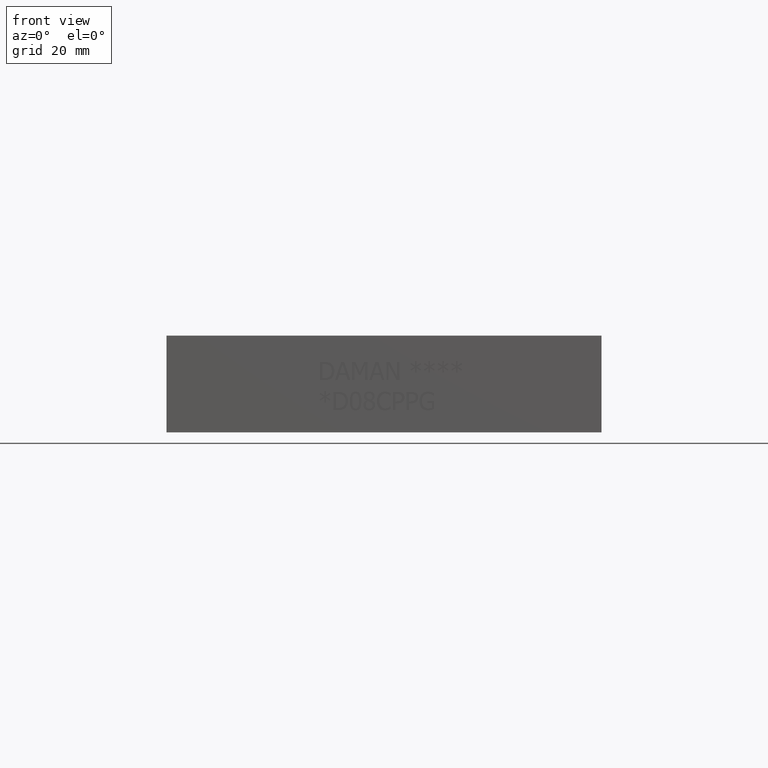
[diagram: clean part render]
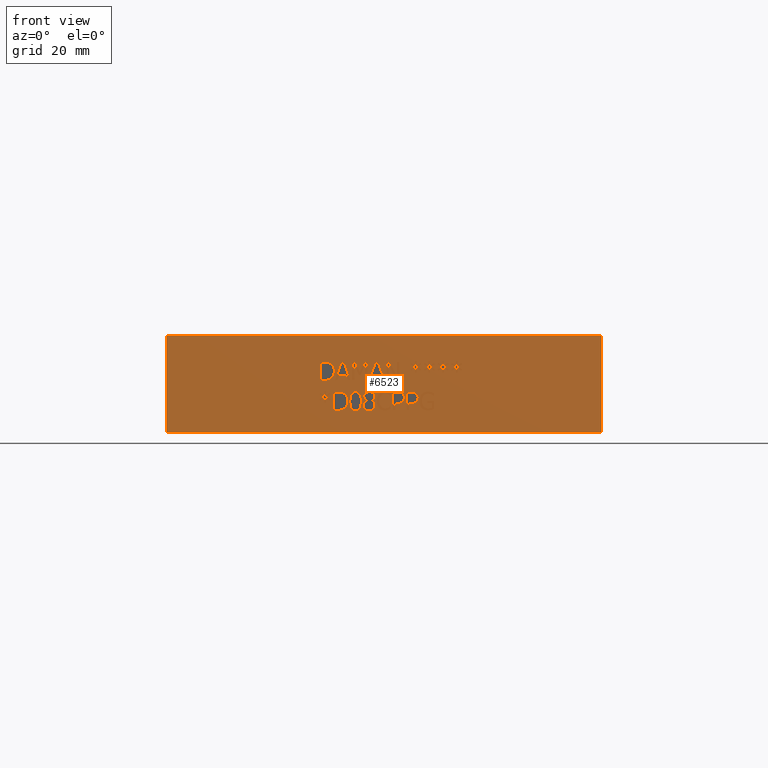
[diagram: same view with one face highlighted and labeled with its STEP entity id]
A machine part, front view. The second image highlights one B-rep face of the part: STEP entity #6523.
In plain terms, the highlighted planar face has unit normal (0, -1, 0).
Its self-contained STEP definition (entity closure, byte-faithful):
#99=FACE_BOUND('',#882,.T.);
#100=FACE_BOUND('',#883,.T.);
#101=FACE_BOUND('',#884,.T.);
#102=FACE_BOUND('',#885,.T.);
#103=FACE_BOUND('',#886,.T.);
#104=FACE_BOUND('',#887,.T.);
#105=FACE_BOUND('',#888,.T.);
#106=FACE_BOUND('',#889,.T.);
#107=FACE_BOUND('',#890,.T.);
#108=FACE_BOUND('',#891,.T.);
#109=FACE_BOUND('',#892,.T.);
#110=FACE_BOUND('',#893,.T.);
#111=FACE_BOUND('',#894,.T.);
#112=FACE_BOUND('',#895,.T.);
#113=FACE_BOUND('',#896,.T.);
#114=FACE_BOUND('',#897,.T.);
#115=FACE_BOUND('',#898,.T.);
#528=FACE_OUTER_BOUND('',#881,.T.);
#881=EDGE_LOOP('',(#5473,#5474,#5475,#5476));
#882=EDGE_LOOP('',(#5477,#5478,#5479,#5480,#5481,#5482,#5483,#5484,#5485,
#5486,#5487,#5488,#5489,#5490,#5491,#5492,#5493,#5494,#5495,#5496,#5497));
#883=EDGE_LOOP('',(#5498,#5499,#5500,#5501,#5502,#5503,#5504,#5505,#5506,
#5507));
#884=EDGE_LOOP('',(#5508,#5509,#5510,#5511,#5512,#5513,#5514,#5515));
#885=EDGE_LOOP('',(#5516,#5517,#5518,#5519,#5520,#5521,#5522,#5523,#5524,
#5525,#5526,#5527,#5528,#5529,#5530,#5531,#5532,#5533));
#886=EDGE_LOOP('',(#5534,#5535,#5536,#5537,#5538,#5539,#5540));
#887=EDGE_LOOP('',(#5541,#5542,#5543,#5544,#5545,#5546,#5547,#5548,#5549,
#5550,#5551,#5552,#5553,#5554,#5555,#5556,#5557,#5558));
#888=EDGE_LOOP('',(#5559,#5560,#5561,#5562,#5563,#5564,#5565,#5566));
#889=EDGE_LOOP('',(#5567,#5568,#5569,#5570,#5571,#5572,#5573));
#890=EDGE_LOOP('',(#5574,#5575,#5576,#5577,#5578,#5579,#5580,#5581,#5582,
#5583,#5584,#5585,#5586));
#891=EDGE_LOOP('',(#5587,#5588,#5589,#5590));
#892=EDGE_LOOP('',(#5591,#5592,#5593,#5594,#5595,#5596,#5597,#5598,#5599,
#5600,#5601,#5602,#5603,#5604,#5605,#5606,#5607,#5608));
#893=EDGE_LOOP('',(#5609,#5610,#5611,#5612,#5613,#5614,#5615,#5616,#5617,
#5618,#5619));
#894=EDGE_LOOP('',(#5620,#5621,#5622,#5623,#5624,#5625,#5626,#5627,#5628,
#5629,#5630,#5631,#5632,#5633,#5634,#5635,#5636,#5637));
#895=EDGE_LOOP('',(#5638,#5639,#5640,#5641,#5642,#5643,#5644,#5645,#5646));
#896=EDGE_LOOP('',(#5647,#5648,#5649,#5650,#5651,#5652,#5653,#5654,#5655,
#5656,#5657,#5658,#5659,#5660,#5661,#5662,#5663,#5664));
#897=EDGE_LOOP('',(#5665,#5666,#5667,#5668,#5669,#5670,#5671,#5672,#5673));
#898=EDGE_LOOP('',(#5674,#5675,#5676,#5677,#5678,#5679,#5680,#5681,#5682,
#5683,#5684,#5685,#5686,#5687,#5688,#5689,#5690,#5691,#5692,#5693));
#993=LINE('',#8373,#1676);
#995=LINE('',#8377,#1678);
#997=LINE('',#8381,#1680);
#999=LINE('',#8385,#1682);
#1001=LINE('',#8389,#1684);
#1007=LINE('',#8449,#1690);
#1009=LINE('',#8453,#1692);
#1026=LINE('',#8561,#1709);
#1029=LINE('',#8566,#1712);
#1031=LINE('',#8570,#1714);
#1033=LINE('',#8574,#1716);
#1035=LINE('',#8578,#1718);
#1037=LINE('',#8582,#1720);
#1039=LINE('',#8586,#1722);
#1041=LINE('',#8590,#1724);
#1043=LINE('',#8594,#1726);
#1045=LINE('',#8597,#1728);
#1046=LINE('',#8601,#1729);
#1050=LINE('',#8609,#1733);
#1053=LINE('',#8615,#1736);
#1056=LINE('',#8621,#1739);
#1063=LINE('',#8636,#1746);
#1066=LINE('',#8642,#1749);
#1069=LINE('',#8648,#1752);
#1072=LINE('',#8653,#1755);
#1097=LINE('',#8705,#1780);
#1100=LINE('',#8710,#1783);
#1102=LINE('',#8714,#1785);
#1104=LINE('',#8718,#1787);
#1106=LINE('',#8722,#1789);
#1108=LINE('',#8726,#1791);
#1110=LINE('',#8730,#1793);
#1112=LINE('',#8734,#1795);
#1114=LINE('',#8738,#1797);
#1116=LINE('',#8742,#1799);
#1118=LINE('',#8746,#1801);
#1120=LINE('',#8750,#1803);
#1122=LINE('',#8754,#1805);
#1124=LINE('',#8758,#1807);
#1126=LINE('',#8762,#1809);
#1128=LINE('',#8766,#1811);
#1130=LINE('',#8770,#1813);
#1132=LINE('',#8773,#1815);
#1136=LINE('',#8823,#1819);
#1151=LINE('',#8894,#1834);
#1154=LINE('',#8899,#1837);
#1177=LINE('',#9027,#1860);
#1180=LINE('',#9032,#1863);
#1182=LINE('',#9036,#1865);
#1184=LINE('',#9040,#1867);
#1186=LINE('',#9044,#1869);
#1188=LINE('',#9048,#1871);
#1190=LINE('',#9052,#1873);
#1192=LINE('',#9056,#1875);
#1194=LINE('',#9060,#1877);
#1196=LINE('',#9064,#1879);
#1198=LINE('',#9068,#1881);
#1200=LINE('',#9072,#1883);
#1202=LINE('',#9076,#1885);
#1204=LINE('',#9080,#1887);
#1206=LINE('',#9084,#1889);
#1208=LINE('',#9088,#1891);
#1210=LINE('',#9092,#1893);
#1212=LINE('',#9095,#1895);
#1213=LINE('',#9099,#1896);
#1217=LINE('',#9107,#1900);
#1220=LINE('',#9113,#1903);
#1223=LINE('',#9119,#1906);
#1230=LINE('',#9134,#1913);
#1233=LINE('',#9140,#1916);
#1236=LINE('',#9146,#1919);
#1239=LINE('',#9151,#1922);
#1257=LINE('',#9301,#1940);
#1260=LINE('',#9306,#1943);
#1269=LINE('',#9348,#1952);
#1272=LINE('',#9379,#1955);
#1276=LINE('',#9387,#1959);
#1279=LINE('',#9393,#1962);
#1282=LINE('',#9399,#1965);
#1285=LINE('',#9405,#1968);
#1288=LINE('',#9411,#1971);
#1291=LINE('',#9417,#1974);
#1294=LINE('',#9423,#1977);
#1297=LINE('',#9429,#1980);
#1300=LINE('',#9435,#1983);
#1303=LINE('',#9441,#1986);
#1306=LINE('',#9447,#1989);
#1309=LINE('',#9452,#1992);
#1323=LINE('',#9723,#2006);
#1327=LINE('',#9731,#2010);
#1330=LINE('',#9737,#2013);
#1333=LINE('',#9743,#2016);
#1336=LINE('',#9749,#2019);
#1339=LINE('',#9755,#2022);
#1342=LINE('',#9761,#2025);
#1345=LINE('',#9767,#2028);
#1348=LINE('',#9773,#2031);
#1351=LINE('',#9779,#2034);
#1354=LINE('',#9785,#2037);
#1357=LINE('',#9791,#2040);
#1360=LINE('',#9797,#2043);
#1363=LINE('',#9803,#2046);
#1366=LINE('',#9809,#2049);
#1369=LINE('',#9815,#2052);
#1372=LINE('',#9821,#2055);
#1375=LINE('',#9826,#2058);
#1391=LINE('',#10120,#2074);
#1398=LINE('',#10218,#2081);
#1402=LINE('',#10263,#2085);
#1406=LINE('',#10271,#2089);
#1409=LINE('',#10277,#2092);
#1412=LINE('',#10283,#2095);
#1415=LINE('',#10289,#2098);
#1418=LINE('',#10295,#2101);
#1421=LINE('',#10301,#2104);
#1424=LINE('',#10307,#2107);
#1427=LINE('',#10313,#2110);
#1430=LINE('',#10319,#2113);
#1433=LINE('',#10325,#2116);
#1436=LINE('',#10331,#2119);
#1439=LINE('',#10337,#2122);
#1442=LINE('',#10343,#2125);
#1445=LINE('',#10349,#2128);
#1448=LINE('',#10355,#2131);
#1451=LINE('',#10361,#2134);
#1454=LINE('',#10366,#2137);
#1469=LINE('',#10511,#2152);
#1472=LINE('',#10516,#2155);
#1474=LINE('',#10520,#2157);
#1483=LINE('',#10562,#2166);
#1485=LINE('',#10566,#2168);
#1488=LINE('',#10597,#2171);
#1492=LINE('',#10605,#2175);
#1495=LINE('',#10611,#2178);
#1498=LINE('',#10617,#2181);
#1501=LINE('',#10623,#2184);
#1504=LINE('',#10629,#2187);
#1507=LINE('',#10635,#2190);
#1510=LINE('',#10641,#2193);
#1513=LINE('',#10647,#2196);
#1516=LINE('',#10653,#2199);
#1519=LINE('',#10659,#2202);
#1522=LINE('',#10665,#2205);
#1525=LINE('',#10671,#2208);
#1528=LINE('',#10677,#2211);
#1531=LINE('',#10683,#2214);
#1534=LINE('',#10689,#2217);
#1537=LINE('',#10695,#2220);
#1540=LINE('',#10700,#2223);
#1555=LINE('',#10845,#2238);
#1558=LINE('',#10850,#2241);
#1560=LINE('',#10854,#2243);
#1569=LINE('',#10896,#2252);
#1571=LINE('',#10900,#2254);
#1581=LINE('',#11065,#2264);
#1584=LINE('',#11071,#2267);
#1591=LINE('',#11165,#2274);
#1594=LINE('',#11171,#2277);
#1602=LINE('',#11308,#2285);
#1603=LINE('',#11310,#2286);
#1604=LINE('',#11312,#2287);
#1605=LINE('',#11313,#2288);
#1676=VECTOR('',#6919,0.393700787401575);
#1678=VECTOR('',#6923,0.393700787401575);
#1680=VECTOR('',#6927,0.393700787401575);
#1682=VECTOR('',#6931,0.393700787401575);
#1684=VECTOR('',#6935,0.393700787401575);
#1690=VECTOR('',#6943,0.393700787401575);
#1692=VECTOR('',#6947,0.393700787401575);
#1709=VECTOR('',#6968,0.393700787401575);
#1712=VECTOR('',#6973,0.393700787401575);
#1714=VECTOR('',#6977,0.393700787401575);
#1716=VECTOR('',#6981,0.393700787401575);
#1718=VECTOR('',#6985,0.393700787401575);
#1720=VECTOR('',#6989,0.393700787401575);
#1722=VECTOR('',#6993,0.393700787401575);
#1724=VECTOR('',#6997,0.393700787401575);
#1726=VECTOR('',#7001,0.393700787401575);
#1728=VECTOR('',#7005,0.393700787401575);
#1729=VECTOR('',#7008,0.393700787401575);
#1733=VECTOR('',#7014,0.393700787401575);
#1736=VECTOR('',#7019,0.393700787401575);
#1739=VECTOR('',#7024,0.393700787401575);
#1746=VECTOR('',#7035,0.393700787401575);
#1749=VECTOR('',#7040,0.393700787401575);
#1752=VECTOR('',#7045,0.393700787401575);
#1755=VECTOR('',#7050,0.393700787401575);
#1780=VECTOR('',#7085,0.393700787401575);
#1783=VECTOR('',#7090,0.393700787401575);
#1785=VECTOR('',#7094,0.393700787401575);
#1787=VECTOR('',#7098,0.393700787401575);
#1789=VECTOR('',#7102,0.393700787401575);
#1791=VECTOR('',#7106,0.393700787401575);
#1793=VECTOR('',#7110,0.393700787401575);
#1795=VECTOR('',#7114,0.393700787401575);
#1797=VECTOR('',#7118,0.393700787401575);
#1799=VECTOR('',#7122,0.393700787401575);
#1801=VECTOR('',#7126,0.393700787401575);
#1803=VECTOR('',#7130,0.393700787401575);
#1805=VECTOR('',#7134,0.393700787401575);
#1807=VECTOR('',#7138,0.393700787401575);
#1809=VECTOR('',#7142,0.393700787401575);
#1811=VECTOR('',#7146,0.393700787401575);
#1813=VECTOR('',#7150,0.393700787401575);
#1815=VECTOR('',#7154,0.393700787401575);
#1819=VECTOR('',#7160,0.393700787401575);
#1834=VECTOR('',#7183,0.393700787401575);
#1837=VECTOR('',#7188,0.393700787401575);
#1860=VECTOR('',#7217,0.393700787401575);
#1863=VECTOR('',#7222,0.393700787401575);
#1865=VECTOR('',#7226,0.393700787401575);
#1867=VECTOR('',#7230,0.393700787401575);
#1869=VECTOR('',#7234,0.393700787401575);
#1871=VECTOR('',#7238,0.393700787401575);
#1873=VECTOR('',#7242,0.393700787401575);
#1875=VECTOR('',#7246,0.393700787401575);
#1877=VECTOR('',#7250,0.393700787401575);
#1879=VECTOR('',#7254,0.393700787401575);
#1881=VECTOR('',#7258,0.393700787401575);
#1883=VECTOR('',#7262,0.393700787401575);
#1885=VECTOR('',#7266,0.393700787401575);
#1887=VECTOR('',#7270,0.393700787401575);
#1889=VECTOR('',#7274,0.393700787401575);
#1891=VECTOR('',#7278,0.393700787401575);
#1893=VECTOR('',#7282,0.393700787401575);
#1895=VECTOR('',#7286,0.393700787401575);
#1896=VECTOR('',#7289,0.393700787401575);
#1900=VECTOR('',#7295,0.393700787401575);
#1903=VECTOR('',#7300,0.393700787401575);
#1906=VECTOR('',#7305,0.393700787401575);
#1913=VECTOR('',#7316,0.393700787401575);
#1916=VECTOR('',#7321,0.393700787401575);
#1919=VECTOR('',#7326,0.393700787401575);
#1922=VECTOR('',#7331,0.393700787401575);
#1940=VECTOR('',#7359,0.393700787401575);
#1943=VECTOR('',#7364,0.393700787401575);
#1952=VECTOR('',#7381,0.393700787401575);
#1955=VECTOR('',#7386,0.393700787401575);
#1959=VECTOR('',#7392,0.393700787401575);
#1962=VECTOR('',#7397,0.393700787401575);
#1965=VECTOR('',#7402,0.393700787401575);
#1968=VECTOR('',#7407,0.393700787401575);
#1971=VECTOR('',#7412,0.393700787401575);
#1974=VECTOR('',#7417,0.393700787401575);
#1977=VECTOR('',#7422,0.393700787401575);
#1980=VECTOR('',#7427,0.393700787401575);
#1983=VECTOR('',#7432,0.393700787401575);
#1986=VECTOR('',#7437,0.393700787401575);
#1989=VECTOR('',#7442,0.393700787401575);
#1992=VECTOR('',#7447,0.393700787401575);
#2006=VECTOR('',#7467,0.393700787401575);
#2010=VECTOR('',#7473,0.393700787401575);
#2013=VECTOR('',#7478,0.393700787401575);
#2016=VECTOR('',#7483,0.393700787401575);
#2019=VECTOR('',#7488,0.393700787401575);
#2022=VECTOR('',#7493,0.393700787401575);
#2025=VECTOR('',#7498,0.393700787401575);
#2028=VECTOR('',#7503,0.393700787401575);
#2031=VECTOR('',#7508,0.393700787401575);
#2034=VECTOR('',#7513,0.393700787401575);
#2037=VECTOR('',#7518,0.393700787401575);
#2040=VECTOR('',#7523,0.393700787401575);
#2043=VECTOR('',#7528,0.393700787401575);
#2046=VECTOR('',#7533,0.393700787401575);
#2049=VECTOR('',#7538,0.393700787401575);
#2052=VECTOR('',#7543,0.393700787401575);
#2055=VECTOR('',#7548,0.393700787401575);
#2058=VECTOR('',#7553,0.393700787401575);
#2074=VECTOR('',#7575,0.393700787401575);
#2081=VECTOR('',#7584,0.393700787401575);
#2085=VECTOR('',#7590,0.393700787401575);
#2089=VECTOR('',#7596,0.393700787401575);
#2092=VECTOR('',#7601,0.393700787401575);
#2095=VECTOR('',#7606,0.393700787401575);
#2098=VECTOR('',#7611,0.393700787401575);
#2101=VECTOR('',#7616,0.393700787401575);
#2104=VECTOR('',#7621,0.393700787401575);
#2107=VECTOR('',#7626,0.393700787401575);
#2110=VECTOR('',#7631,0.393700787401575);
#2113=VECTOR('',#7636,0.393700787401575);
#2116=VECTOR('',#7641,0.393700787401575);
#2119=VECTOR('',#7646,0.393700787401575);
#2122=VECTOR('',#7651,0.393700787401575);
#2125=VECTOR('',#7656,0.393700787401575);
#2128=VECTOR('',#7661,0.393700787401575);
#2131=VECTOR('',#7666,0.393700787401575);
#2134=VECTOR('',#7671,0.393700787401575);
#2137=VECTOR('',#7676,0.393700787401575);
#2152=VECTOR('',#7697,0.393700787401575);
#2155=VECTOR('',#7702,0.393700787401575);
#2157=VECTOR('',#7706,0.393700787401575);
#2166=VECTOR('',#7723,0.393700787401575);
#2168=VECTOR('',#7727,0.393700787401575);
#2171=VECTOR('',#7732,0.393700787401575);
#2175=VECTOR('',#7738,0.393700787401575);
#2178=VECTOR('',#7743,0.393700787401575);
#2181=VECTOR('',#7748,0.393700787401575);
#2184=VECTOR('',#7753,0.393700787401575);
#2187=VECTOR('',#7758,0.393700787401575);
#2190=VECTOR('',#7763,0.393700787401575);
#2193=VECTOR('',#7768,0.393700787401575);
#2196=VECTOR('',#7773,0.393700787401575);
#2199=VECTOR('',#7778,0.393700787401575);
#2202=VECTOR('',#7783,0.393700787401575);
#2205=VECTOR('',#7788,0.393700787401575);
#2208=VECTOR('',#7793,0.393700787401575);
#2211=VECTOR('',#7798,0.393700787401575);
#2214=VECTOR('',#7803,0.393700787401575);
#2217=VECTOR('',#7808,0.393700787401575);
#2220=VECTOR('',#7813,0.393700787401575);
#2223=VECTOR('',#7818,0.393700787401575);
#2238=VECTOR('',#7839,0.393700787401575);
#2241=VECTOR('',#7844,0.393700787401575);
#2243=VECTOR('',#7848,0.393700787401575);
#2252=VECTOR('',#7865,0.393700787401575);
#2254=VECTOR('',#7869,0.393700787401575);
#2264=VECTOR('',#7881,0.393700787401575);
#2267=VECTOR('',#7886,0.393700787401575);
#2274=VECTOR('',#7895,0.393700787401575);
#2277=VECTOR('',#7900,0.393700787401575);
#2285=VECTOR('',#7912,4.5);
#2286=VECTOR('',#7913,1.);
#2287=VECTOR('',#7914,4.5);
#2288=VECTOR('',#7915,1.);
#2361=B_SPLINE_CURVE_WITH_KNOTS('',2,(#8323,#8324,#8325,#8326),
 .UNSPECIFIED.,.F.,.F.,(3,1,3),(0.,1.,2.),.UNSPECIFIED.);
#2362=B_SPLINE_CURVE_WITH_KNOTS('',2,(#8338,#8339,#8340,#8341),
 .UNSPECIFIED.,.F.,.F.,(3,1,3),(0.,1.,2.),.UNSPECIFIED.);
#2363=B_SPLINE_CURVE_WITH_KNOTS('',2,(#8352,#8353,#8354,#8355),
 .UNSPECIFIED.,.F.,.F.,(3,1,3),(0.,1.,2.),.UNSPECIFIED.);
#2364=B_SPLINE_CURVE_WITH_KNOTS('',2,(#8366,#8367,#8368,#8369),
 .UNSPECIFIED.,.F.,.F.,(3,1,3),(0.,1.,2.),.UNSPECIFIED.);
#2365=B_SPLINE_CURVE_WITH_KNOTS('',2,(#8400,#8401,#8402,#8403),
 .UNSPECIFIED.,.F.,.F.,(3,1,3),(0.,1.,2.),.UNSPECIFIED.);
#2366=B_SPLINE_CURVE_WITH_KNOTS('',2,(#8414,#8415,#8416,#8417),
 .UNSPECIFIED.,.F.,.F.,(3,1,3),(0.,1.,2.),.UNSPECIFIED.);
#2367=B_SPLINE_CURVE_WITH_KNOTS('',2,(#8428,#8429,#8430,#8431),
 .UNSPECIFIED.,.F.,.F.,(3,1,3),(0.,1.,2.),.UNSPECIFIED.);
#2368=B_SPLINE_CURVE_WITH_KNOTS('',2,(#8442,#8443,#8444,#8445),
 .UNSPECIFIED.,.F.,.F.,(3,1,3),(0.,1.,2.),.UNSPECIFIED.);
#2369=B_SPLINE_CURVE_WITH_KNOTS('',2,(#8464,#8465,#8466,#8467),
 .UNSPECIFIED.,.F.,.F.,(3,1,3),(0.,1.,2.),.UNSPECIFIED.);
#2370=B_SPLINE_CURVE_WITH_KNOTS('',2,(#8478,#8479,#8480,#8481),
 .UNSPECIFIED.,.F.,.F.,(3,1,3),(0.,1.,2.),.UNSPECIFIED.);
#2371=B_SPLINE_CURVE_WITH_KNOTS('',2,(#8492,#8493,#8494,#8495),
 .UNSPECIFIED.,.F.,.F.,(3,1,3),(0.,1.,2.),.UNSPECIFIED.);
#2372=B_SPLINE_CURVE_WITH_KNOTS('',2,(#8506,#8507,#8508,#8509),
 .UNSPECIFIED.,.F.,.F.,(3,1,3),(0.,1.,2.),.UNSPECIFIED.);
#2373=B_SPLINE_CURVE_WITH_KNOTS('',2,(#8520,#8521,#8522,#8523),
 .UNSPECIFIED.,.F.,.F.,(3,1,3),(0.,1.,2.),.UNSPECIFIED.);
#2374=B_SPLINE_CURVE_WITH_KNOTS('',2,(#8533,#8534,#8535,#8536),
 .UNSPECIFIED.,.F.,.F.,(3,1,3),(0.,1.,2.),.UNSPECIFIED.);
#2375=B_SPLINE_CURVE_WITH_KNOTS('',2,(#8784,#8785,#8786,#8787),
 .UNSPECIFIED.,.F.,.F.,(3,1,3),(0.,1.,2.),.UNSPECIFIED.);
#2377=B_SPLINE_CURVE_WITH_KNOTS('',2,(#8808,#8809,#8810,#8811),
 .UNSPECIFIED.,.F.,.F.,(3,1,3),(0.,1.,2.),.UNSPECIFIED.);
#2379=B_SPLINE_CURVE_WITH_KNOTS('',2,(#8857,#8858,#8859,#8860),
 .UNSPECIFIED.,.F.,.F.,(3,1,3),(0.,1.,2.),.UNSPECIFIED.);
#2381=B_SPLINE_CURVE_WITH_KNOTS('',2,(#8879,#8880,#8881,#8882),
 .UNSPECIFIED.,.F.,.F.,(3,1,3),(0.,1.,2.),.UNSPECIFIED.);
#2403=B_SPLINE_CURVE_WITH_KNOTS('',2,(#9317,#9318,#9319,#9320),
 .UNSPECIFIED.,.F.,.F.,(3,1,3),(0.,1.,2.),.UNSPECIFIED.);
#2404=B_SPLINE_CURVE_WITH_KNOTS('',2,(#9331,#9332,#9333,#9334),
 .UNSPECIFIED.,.F.,.F.,(3,1,3),(0.,1.,2.),.UNSPECIFIED.);
#2405=B_SPLINE_CURVE_WITH_KNOTS('',2,(#9359,#9360,#9361,#9362),
 .UNSPECIFIED.,.F.,.F.,(3,1,3),(0.,1.,2.),.UNSPECIFIED.);
#2406=B_SPLINE_CURVE_WITH_KNOTS('',2,(#9372,#9373,#9374,#9375),
 .UNSPECIFIED.,.F.,.F.,(3,1,3),(0.,1.,2.),.UNSPECIFIED.);
#2423=B_SPLINE_CURVE_WITH_KNOTS('',2,(#9620,#9621,#9622,#9623),
 .UNSPECIFIED.,.F.,.F.,(3,1,3),(0.,1.,2.),.UNSPECIFIED.);
#2424=B_SPLINE_CURVE_WITH_KNOTS('',2,(#9635,#9636,#9637,#9638),
 .UNSPECIFIED.,.F.,.F.,(3,1,3),(0.,1.,2.),.UNSPECIFIED.);
#2429=B_SPLINE_CURVE_WITH_KNOTS('',2,(#9703,#9704,#9705,#9706),
 .UNSPECIFIED.,.F.,.F.,(3,1,3),(0.,1.,2.),.UNSPECIFIED.);
#2430=B_SPLINE_CURVE_WITH_KNOTS('',2,(#9716,#9717,#9718,#9719),
 .UNSPECIFIED.,.F.,.F.,(3,1,3),(0.,1.,2.),.UNSPECIFIED.);
#2456=B_SPLINE_CURVE_WITH_KNOTS('',2,(#10084,#10085,#10086,#10087),
 .UNSPECIFIED.,.F.,.F.,(3,1,3),(0.,1.,2.),.UNSPECIFIED.);
#2457=B_SPLINE_CURVE_WITH_KNOTS('',2,(#10099,#10100,#10101,#10102),
 .UNSPECIFIED.,.F.,.F.,(3,1,3),(0.,1.,2.),.UNSPECIFIED.);
#2458=B_SPLINE_CURVE_WITH_KNOTS('',2,(#10113,#10114,#10115,#10116),
 .UNSPECIFIED.,.F.,.F.,(3,1,3),(0.,1.,2.),.UNSPECIFIED.);
#2459=B_SPLINE_CURVE_WITH_KNOTS('',2,(#10131,#10132,#10133,#10134),
 .UNSPECIFIED.,.F.,.F.,(3,1,3),(0.,1.,2.),.UNSPECIFIED.);
#2460=B_SPLINE_CURVE_WITH_KNOTS('',2,(#10145,#10146,#10147,#10148),
 .UNSPECIFIED.,.F.,.F.,(3,1,3),(0.,1.,2.),.UNSPECIFIED.);
#2465=B_SPLINE_CURVE_WITH_KNOTS('',2,(#10211,#10212,#10213,#10214),
 .UNSPECIFIED.,.F.,.F.,(3,1,3),(0.,1.,2.),.UNSPECIFIED.);
#2466=B_SPLINE_CURVE_WITH_KNOTS('',2,(#10229,#10230,#10231,#10232),
 .UNSPECIFIED.,.F.,.F.,(3,1,3),(0.,1.,2.),.UNSPECIFIED.);
#2467=B_SPLINE_CURVE_WITH_KNOTS('',2,(#10243,#10244,#10245,#10246),
 .UNSPECIFIED.,.F.,.F.,(3,1,3),(0.,1.,2.),.UNSPECIFIED.);
#2468=B_SPLINE_CURVE_WITH_KNOTS('',2,(#10256,#10257,#10258,#10259),
 .UNSPECIFIED.,.F.,.F.,(3,1,3),(0.,1.,2.),.UNSPECIFIED.);
#2481=B_SPLINE_CURVE_WITH_KNOTS('',2,(#10531,#10532,#10533,#10534),
 .UNSPECIFIED.,.F.,.F.,(3,1,3),(0.,1.,2.),.UNSPECIFIED.);
#2482=B_SPLINE_CURVE_WITH_KNOTS('',2,(#10545,#10546,#10547,#10548),
 .UNSPECIFIED.,.F.,.F.,(3,1,3),(0.,1.,2.),.UNSPECIFIED.);
#2483=B_SPLINE_CURVE_WITH_KNOTS('',2,(#10577,#10578,#10579,#10580),
 .UNSPECIFIED.,.F.,.F.,(3,1,3),(0.,1.,2.),.UNSPECIFIED.);
#2484=B_SPLINE_CURVE_WITH_KNOTS('',2,(#10590,#10591,#10592,#10593),
 .UNSPECIFIED.,.F.,.F.,(3,1,3),(0.,1.,2.),.UNSPECIFIED.);
#2497=B_SPLINE_CURVE_WITH_KNOTS('',2,(#10865,#10866,#10867,#10868),
 .UNSPECIFIED.,.F.,.F.,(3,1,3),(0.,1.,2.),.UNSPECIFIED.);
#2498=B_SPLINE_CURVE_WITH_KNOTS('',2,(#10879,#10880,#10881,#10882),
 .UNSPECIFIED.,.F.,.F.,(3,1,3),(0.,1.,2.),.UNSPECIFIED.);
#2499=B_SPLINE_CURVE_WITH_KNOTS('',2,(#10911,#10912,#10913,#10914),
 .UNSPECIFIED.,.F.,.F.,(3,1,3),(0.,1.,2.),.UNSPECIFIED.);
#2500=B_SPLINE_CURVE_WITH_KNOTS('',2,(#10924,#10925,#10926,#10927),
 .UNSPECIFIED.,.F.,.F.,(3,1,3),(0.,1.,2.),.UNSPECIFIED.);
#2501=B_SPLINE_CURVE_WITH_KNOTS('',2,(#10938,#10939,#10940,#10941),
 .UNSPECIFIED.,.F.,.F.,(3,1,3),(0.,1.,2.),.UNSPECIFIED.);
#2503=B_SPLINE_CURVE_WITH_KNOTS('',2,(#10962,#10963,#10964,#10965),
 .UNSPECIFIED.,.F.,.F.,(3,1,3),(0.,1.,2.),.UNSPECIFIED.);
#2505=B_SPLINE_CURVE_WITH_KNOTS('',2,(#10984,#10985,#10986,#10987),
 .UNSPECIFIED.,.F.,.F.,(3,1,3),(0.,1.,2.),.UNSPECIFIED.);
#2507=B_SPLINE_CURVE_WITH_KNOTS('',2,(#11006,#11007,#11008,#11009),
 .UNSPECIFIED.,.F.,.F.,(3,1,3),(0.,1.,2.),.UNSPECIFIED.);
#2509=B_SPLINE_CURVE_WITH_KNOTS('',2,(#11028,#11029,#11030,#11031),
 .UNSPECIFIED.,.F.,.F.,(3,1,3),(0.,1.,2.),.UNSPECIFIED.);
#2511=B_SPLINE_CURVE_WITH_KNOTS('',2,(#11050,#11051,#11052,#11053),
 .UNSPECIFIED.,.F.,.F.,(3,1,3),(0.,1.,2.),.UNSPECIFIED.);
#2513=B_SPLINE_CURVE_WITH_KNOTS('',2,(#11084,#11085,#11086,#11087),
 .UNSPECIFIED.,.F.,.F.,(3,1,3),(0.,1.,2.),.UNSPECIFIED.);
#2515=B_SPLINE_CURVE_WITH_KNOTS('',2,(#11106,#11107,#11108,#11109),
 .UNSPECIFIED.,.F.,.F.,(3,1,3),(0.,1.,2.),.UNSPECIFIED.);
#2517=B_SPLINE_CURVE_WITH_KNOTS('',2,(#11128,#11129,#11130,#11131),
 .UNSPECIFIED.,.F.,.F.,(3,1,3),(0.,1.,2.),.UNSPECIFIED.);
#2519=B_SPLINE_CURVE_WITH_KNOTS('',2,(#11150,#11151,#11152,#11153),
 .UNSPECIFIED.,.F.,.F.,(3,1,3),(0.,1.,2.),.UNSPECIFIED.);
#2521=B_SPLINE_CURVE_WITH_KNOTS('',2,(#11184,#11185,#11186,#11187),
 .UNSPECIFIED.,.F.,.F.,(3,1,3),(0.,1.,2.),.UNSPECIFIED.);
#2523=B_SPLINE_CURVE_WITH_KNOTS('',2,(#11206,#11207,#11208,#11209),
 .UNSPECIFIED.,.F.,.F.,(3,1,3),(0.,1.,2.),.UNSPECIFIED.);
#2525=B_SPLINE_CURVE_WITH_KNOTS('',2,(#11228,#11229,#11230,#11231),
 .UNSPECIFIED.,.F.,.F.,(3,1,3),(0.,1.,2.),.UNSPECIFIED.);
#2527=B_SPLINE_CURVE_WITH_KNOTS('',2,(#11250,#11251,#11252,#11253),
 .UNSPECIFIED.,.F.,.F.,(3,1,3),(0.,1.,2.),.UNSPECIFIED.);
#2529=B_SPLINE_CURVE_WITH_KNOTS('',2,(#11272,#11273,#11274,#11275),
 .UNSPECIFIED.,.F.,.F.,(3,1,3),(0.,1.,2.),.UNSPECIFIED.);
#2531=B_SPLINE_CURVE_WITH_KNOTS('',2,(#11293,#11294,#11295,#11296),
 .UNSPECIFIED.,.F.,.F.,(3,1,3),(0.,1.,2.),.UNSPECIFIED.);
#2570=VERTEX_POINT('',#8321);
#2571=VERTEX_POINT('',#8322);
#2572=VERTEX_POINT('',#8337);
#2573=VERTEX_POINT('',#8351);
#2574=VERTEX_POINT('',#8365);
#2575=VERTEX_POINT('',#8372);
#2576=VERTEX_POINT('',#8376);
#2577=VERTEX_POINT('',#8380);
#2578=VERTEX_POINT('',#8384);
#2579=VERTEX_POINT('',#8388);
#2580=VERTEX_POINT('',#8399);
#2581=VERTEX_POINT('',#8413);
#2582=VERTEX_POINT('',#8427);
#2583=VERTEX_POINT('',#8441);
#2584=VERTEX_POINT('',#8448);
#2585=VERTEX_POINT('',#8452);
#2586=VERTEX_POINT('',#8463);
#2587=VERTEX_POINT('',#8477);
#2588=VERTEX_POINT('',#8491);
#2589=VERTEX_POINT('',#8505);
#2590=VERTEX_POINT('',#8519);
#2601=VERTEX_POINT('',#8559);
#2602=VERTEX_POINT('',#8560);
#2603=VERTEX_POINT('',#8565);
#2604=VERTEX_POINT('',#8569);
#2605=VERTEX_POINT('',#8573);
#2606=VERTEX_POINT('',#8577);
#2607=VERTEX_POINT('',#8581);
#2608=VERTEX_POINT('',#8585);
#2609=VERTEX_POINT('',#8589);
#2610=VERTEX_POINT('',#8593);
#2611=VERTEX_POINT('',#8599);
#2612=VERTEX_POINT('',#8600);
#2615=VERTEX_POINT('',#8608);
#2617=VERTEX_POINT('',#8614);
#2619=VERTEX_POINT('',#8620);
#2625=VERTEX_POINT('',#8635);
#2627=VERTEX_POINT('',#8641);
#2629=VERTEX_POINT('',#8647);
#2651=VERTEX_POINT('',#8703);
#2652=VERTEX_POINT('',#8704);
#2653=VERTEX_POINT('',#8709);
#2654=VERTEX_POINT('',#8713);
#2655=VERTEX_POINT('',#8717);
#2656=VERTEX_POINT('',#8721);
#2657=VERTEX_POINT('',#8725);
#2658=VERTEX_POINT('',#8729);
#2659=VERTEX_POINT('',#8733);
#2660=VERTEX_POINT('',#8737);
#2661=VERTEX_POINT('',#8741);
#2662=VERTEX_POINT('',#8745);
#2663=VERTEX_POINT('',#8749);
#2664=VERTEX_POINT('',#8753);
#2665=VERTEX_POINT('',#8757);
#2666=VERTEX_POINT('',#8761);
#2667=VERTEX_POINT('',#8765);
#2668=VERTEX_POINT('',#8769);
#2669=VERTEX_POINT('',#8782);
#2670=VERTEX_POINT('',#8783);
#2673=VERTEX_POINT('',#8807);
#2675=VERTEX_POINT('',#8822);
#2685=VERTEX_POINT('',#8856);
#2687=VERTEX_POINT('',#8878);
#2689=VERTEX_POINT('',#8893);
#2715=VERTEX_POINT('',#9025);
#2716=VERTEX_POINT('',#9026);
#2717=VERTEX_POINT('',#9031);
#2718=VERTEX_POINT('',#9035);
#2719=VERTEX_POINT('',#9039);
#2720=VERTEX_POINT('',#9043);
#2721=VERTEX_POINT('',#9047);
#2722=VERTEX_POINT('',#9051);
#2723=VERTEX_POINT('',#9055);
#2724=VERTEX_POINT('',#9059);
#2725=VERTEX_POINT('',#9063);
#2726=VERTEX_POINT('',#9067);
#2727=VERTEX_POINT('',#9071);
#2728=VERTEX_POINT('',#9075);
#2729=VERTEX_POINT('',#9079);
#2730=VERTEX_POINT('',#9083);
#2731=VERTEX_POINT('',#9087);
#2732=VERTEX_POINT('',#9091);
#2733=VERTEX_POINT('',#9097);
#2734=VERTEX_POINT('',#9098);
#2737=VERTEX_POINT('',#9106);
#2739=VERTEX_POINT('',#9112);
#2741=VERTEX_POINT('',#9118);
#2747=VERTEX_POINT('',#9133);
#2749=VERTEX_POINT('',#9139);
#2751=VERTEX_POINT('',#9145);
#2774=VERTEX_POINT('',#9299);
#2775=VERTEX_POINT('',#9300);
#2776=VERTEX_POINT('',#9305);
#2777=VERTEX_POINT('',#9316);
#2778=VERTEX_POINT('',#9330);
#2781=VERTEX_POINT('',#9347);
#2782=VERTEX_POINT('',#9358);
#2783=VERTEX_POINT('',#9377);
#2784=VERTEX_POINT('',#9378);
#2787=VERTEX_POINT('',#9386);
#2789=VERTEX_POINT('',#9392);
#2791=VERTEX_POINT('',#9398);
#2793=VERTEX_POINT('',#9404);
#2795=VERTEX_POINT('',#9410);
#2797=VERTEX_POINT('',#9416);
#2799=VERTEX_POINT('',#9422);
#2801=VERTEX_POINT('',#9428);
#2803=VERTEX_POINT('',#9434);
#2805=VERTEX_POINT('',#9440);
#2807=VERTEX_POINT('',#9446);
#2826=VERTEX_POINT('',#9618);
#2827=VERTEX_POINT('',#9619);
#2828=VERTEX_POINT('',#9634);
#2832=VERTEX_POINT('',#9702);
#2833=VERTEX_POINT('',#9721);
#2834=VERTEX_POINT('',#9722);
#2837=VERTEX_POINT('',#9730);
#2839=VERTEX_POINT('',#9736);
#2841=VERTEX_POINT('',#9742);
#2843=VERTEX_POINT('',#9748);
#2845=VERTEX_POINT('',#9754);
#2847=VERTEX_POINT('',#9760);
#2849=VERTEX_POINT('',#9766);
#2851=VERTEX_POINT('',#9772);
#2853=VERTEX_POINT('',#9778);
#2855=VERTEX_POINT('',#9784);
#2857=VERTEX_POINT('',#9790);
#2859=VERTEX_POINT('',#9796);
#2861=VERTEX_POINT('',#9802);
#2863=VERTEX_POINT('',#9808);
#2865=VERTEX_POINT('',#9814);
#2867=VERTEX_POINT('',#9820);
#2898=VERTEX_POINT('',#10082);
#2899=VERTEX_POINT('',#10083);
#2900=VERTEX_POINT('',#10098);
#2901=VERTEX_POINT('',#10112);
#2902=VERTEX_POINT('',#10119);
#2903=VERTEX_POINT('',#10130);
#2904=VERTEX_POINT('',#10144);
#2907=VERTEX_POINT('',#10210);
#2908=VERTEX_POINT('',#10217);
#2909=VERTEX_POINT('',#10228);
#2910=VERTEX_POINT('',#10242);
#2911=VERTEX_POINT('',#10261);
#2912=VERTEX_POINT('',#10262);
#2915=VERTEX_POINT('',#10270);
#2917=VERTEX_POINT('',#10276);
#2919=VERTEX_POINT('',#10282);
#2921=VERTEX_POINT('',#10288);
#2923=VERTEX_POINT('',#10294);
#2925=VERTEX_POINT('',#10300);
#2927=VERTEX_POINT('',#10306);
#2929=VERTEX_POINT('',#10312);
#2931=VERTEX_POINT('',#10318);
#2933=VERTEX_POINT('',#10324);
#2935=VERTEX_POINT('',#10330);
#2937=VERTEX_POINT('',#10336);
#2939=VERTEX_POINT('',#10342);
#2941=VERTEX_POINT('',#10348);
#2943=VERTEX_POINT('',#10354);
#2945=VERTEX_POINT('',#10360);
#2968=VERTEX_POINT('',#10509);
#2969=VERTEX_POINT('',#10510);
#2970=VERTEX_POINT('',#10515);
#2971=VERTEX_POINT('',#10519);
#2972=VERTEX_POINT('',#10530);
#2973=VERTEX_POINT('',#10544);
#2976=VERTEX_POINT('',#10561);
#2977=VERTEX_POINT('',#10565);
#2978=VERTEX_POINT('',#10576);
#2979=VERTEX_POINT('',#10595);
#2980=VERTEX_POINT('',#10596);
#2983=VERTEX_POINT('',#10604);
#2985=VERTEX_POINT('',#10610);
#2987=VERTEX_POINT('',#10616);
#2989=VERTEX_POINT('',#10622);
#2991=VERTEX_POINT('',#10628);
#2993=VERTEX_POINT('',#10634);
#2995=VERTEX_POINT('',#10640);
#2997=VERTEX_POINT('',#10646);
#2999=VERTEX_POINT('',#10652);
#3001=VERTEX_POINT('',#10658);
#3003=VERTEX_POINT('',#10664);
#3005=VERTEX_POINT('',#10670);
#3007=VERTEX_POINT('',#10676);
#3009=VERTEX_POINT('',#10682);
#3011=VERTEX_POINT('',#10688);
#3013=VERTEX_POINT('',#10694);
#3036=VERTEX_POINT('',#10843);
#3037=VERTEX_POINT('',#10844);
#3038=VERTEX_POINT('',#10849);
#3039=VERTEX_POINT('',#10853);
#3040=VERTEX_POINT('',#10864);
#3041=VERTEX_POINT('',#10878);
#3044=VERTEX_POINT('',#10895);
#3045=VERTEX_POINT('',#10899);
#3046=VERTEX_POINT('',#10910);
#3047=VERTEX_POINT('',#10936);
#3048=VERTEX_POINT('',#10937);
#3051=VERTEX_POINT('',#10961);
#3053=VERTEX_POINT('',#10983);
#3055=VERTEX_POINT('',#11005);
#3057=VERTEX_POINT('',#11027);
#3059=VERTEX_POINT('',#11049);
#3061=VERTEX_POINT('',#11064);
#3063=VERTEX_POINT('',#11070);
#3065=VERTEX_POINT('',#11083);
#3067=VERTEX_POINT('',#11105);
#3069=VERTEX_POINT('',#11127);
#3071=VERTEX_POINT('',#11149);
#3073=VERTEX_POINT('',#11164);
#3075=VERTEX_POINT('',#11170);
#3077=VERTEX_POINT('',#11183);
#3079=VERTEX_POINT('',#11205);
#3081=VERTEX_POINT('',#11227);
#3083=VERTEX_POINT('',#11249);
#3085=VERTEX_POINT('',#11271);
#3087=VERTEX_POINT('',#11306);
#3088=VERTEX_POINT('',#11307);
#3089=VERTEX_POINT('',#11309);
#3090=VERTEX_POINT('',#11311);
#3207=EDGE_CURVE('',#2570,#2571,#2361,.T.);
#3210=EDGE_CURVE('',#2571,#2572,#2362,.T.);
#3212=EDGE_CURVE('',#2572,#2573,#2363,.T.);
#3214=EDGE_CURVE('',#2573,#2574,#2364,.T.);
#3216=EDGE_CURVE('',#2574,#2575,#993,.T.);
#3218=EDGE_CURVE('',#2575,#2576,#995,.T.);
#3220=EDGE_CURVE('',#2576,#2577,#997,.T.);
#3222=EDGE_CURVE('',#2577,#2578,#999,.T.);
#3224=EDGE_CURVE('',#2578,#2579,#1001,.T.);
#3226=EDGE_CURVE('',#2579,#2580,#2365,.T.);
#3228=EDGE_CURVE('',#2580,#2581,#2366,.T.);
#3230=EDGE_CURVE('',#2582,#2570,#2367,.T.);
#3232=EDGE_CURVE('',#2583,#2582,#2368,.T.);
#3234=EDGE_CURVE('',#2584,#2583,#1007,.T.);
#3236=EDGE_CURVE('',#2585,#2584,#1009,.T.);
#3238=EDGE_CURVE('',#2586,#2585,#2369,.T.);
#3240=EDGE_CURVE('',#2587,#2586,#2370,.T.);
#3242=EDGE_CURVE('',#2588,#2587,#2371,.T.);
#3244=EDGE_CURVE('',#2589,#2588,#2372,.T.);
#3246=EDGE_CURVE('',#2590,#2589,#2373,.T.);
#3248=EDGE_CURVE('',#2581,#2590,#2374,.T.);
#3259=EDGE_CURVE('',#2601,#2602,#1026,.T.);
#3262=EDGE_CURVE('',#2602,#2603,#1029,.T.);
#3264=EDGE_CURVE('',#2603,#2604,#1031,.T.);
#3266=EDGE_CURVE('',#2604,#2605,#1033,.T.);
#3268=EDGE_CURVE('',#2605,#2606,#1035,.T.);
#3270=EDGE_CURVE('',#2607,#2601,#1037,.T.);
#3272=EDGE_CURVE('',#2608,#2607,#1039,.T.);
#3274=EDGE_CURVE('',#2609,#2608,#1041,.T.);
#3276=EDGE_CURVE('',#2610,#2609,#1043,.T.);
#3278=EDGE_CURVE('',#2606,#2610,#1045,.T.);
#3279=EDGE_CURVE('',#2611,#2612,#1046,.T.);
#3283=EDGE_CURVE('',#2612,#2615,#1050,.T.);
#3286=EDGE_CURVE('',#2615,#2617,#1053,.T.);
#3289=EDGE_CURVE('',#2617,#2619,#1056,.T.);
#3296=EDGE_CURVE('',#2625,#2611,#1063,.T.);
#3299=EDGE_CURVE('',#2627,#2625,#1066,.T.);
#3302=EDGE_CURVE('',#2629,#2627,#1069,.T.);
#3305=EDGE_CURVE('',#2619,#2629,#1072,.T.);
#3330=EDGE_CURVE('',#2651,#2652,#1097,.T.);
#3333=EDGE_CURVE('',#2652,#2653,#1100,.T.);
#3335=EDGE_CURVE('',#2653,#2654,#1102,.T.);
#3337=EDGE_CURVE('',#2654,#2655,#1104,.T.);
#3339=EDGE_CURVE('',#2655,#2656,#1106,.T.);
#3341=EDGE_CURVE('',#2656,#2657,#1108,.T.);
#3343=EDGE_CURVE('',#2657,#2658,#1110,.T.);
#3345=EDGE_CURVE('',#2658,#2659,#1112,.T.);
#3347=EDGE_CURVE('',#2659,#2660,#1114,.T.);
#3349=EDGE_CURVE('',#2661,#2651,#1116,.T.);
#3351=EDGE_CURVE('',#2662,#2661,#1118,.T.);
#3353=EDGE_CURVE('',#2663,#2662,#1120,.T.);
#3355=EDGE_CURVE('',#2664,#2663,#1122,.T.);
#3357=EDGE_CURVE('',#2665,#2664,#1124,.T.);
#3359=EDGE_CURVE('',#2666,#2665,#1126,.T.);
#3361=EDGE_CURVE('',#2667,#2666,#1128,.T.);
#3363=EDGE_CURVE('',#2668,#2667,#1130,.T.);
#3365=EDGE_CURVE('',#2660,#2668,#1132,.T.);
#3366=EDGE_CURVE('',#2669,#2670,#2375,.T.);
#3370=EDGE_CURVE('',#2670,#2673,#2377,.T.);
#3373=EDGE_CURVE('',#2673,#2675,#1136,.T.);
#3386=EDGE_CURVE('',#2685,#2669,#2379,.T.);
#3389=EDGE_CURVE('',#2687,#2685,#2381,.T.);
#3392=EDGE_CURVE('',#2689,#2687,#1151,.T.);
#3395=EDGE_CURVE('',#2675,#2689,#1154,.T.);
#3426=EDGE_CURVE('',#2715,#2716,#1177,.T.);
#3429=EDGE_CURVE('',#2716,#2717,#1180,.T.);
#3431=EDGE_CURVE('',#2717,#2718,#1182,.T.);
#3433=EDGE_CURVE('',#2718,#2719,#1184,.T.);
#3435=EDGE_CURVE('',#2719,#2720,#1186,.T.);
#3437=EDGE_CURVE('',#2720,#2721,#1188,.T.);
#3439=EDGE_CURVE('',#2721,#2722,#1190,.T.);
#3441=EDGE_CURVE('',#2722,#2723,#1192,.T.);
#3443=EDGE_CURVE('',#2723,#2724,#1194,.T.);
#3445=EDGE_CURVE('',#2725,#2715,#1196,.T.);
#3447=EDGE_CURVE('',#2726,#2725,#1198,.T.);
#3449=EDGE_CURVE('',#2727,#2726,#1200,.T.);
#3451=EDGE_CURVE('',#2728,#2727,#1202,.T.);
#3453=EDGE_CURVE('',#2729,#2728,#1204,.T.);
#3455=EDGE_CURVE('',#2730,#2729,#1206,.T.);
#3457=EDGE_CURVE('',#2731,#2730,#1208,.T.);
#3459=EDGE_CURVE('',#2732,#2731,#1210,.T.);
#3461=EDGE_CURVE('',#2724,#2732,#1212,.T.);
#3462=EDGE_CURVE('',#2733,#2734,#1213,.T.);
#3466=EDGE_CURVE('',#2734,#2737,#1217,.T.);
#3469=EDGE_CURVE('',#2737,#2739,#1220,.T.);
#3472=EDGE_CURVE('',#2739,#2741,#1223,.T.);
#3479=EDGE_CURVE('',#2747,#2733,#1230,.T.);
#3482=EDGE_CURVE('',#2749,#2747,#1233,.T.);
#3485=EDGE_CURVE('',#2751,#2749,#1236,.T.);
#3488=EDGE_CURVE('',#2741,#2751,#1239,.T.);
#3518=EDGE_CURVE('',#2774,#2775,#1257,.T.);
#3521=EDGE_CURVE('',#2775,#2776,#1260,.T.);
#3523=EDGE_CURVE('',#2776,#2777,#2403,.T.);
#3525=EDGE_CURVE('',#2777,#2778,#2404,.T.);
#3532=EDGE_CURVE('',#2781,#2774,#1269,.T.);
#3534=EDGE_CURVE('',#2782,#2781,#2405,.T.);
#3536=EDGE_CURVE('',#2778,#2782,#2406,.T.);
#3537=EDGE_CURVE('',#2783,#2784,#1272,.T.);
#3541=EDGE_CURVE('',#2784,#2787,#1276,.T.);
#3544=EDGE_CURVE('',#2787,#2789,#1279,.T.);
#3547=EDGE_CURVE('',#2789,#2791,#1282,.T.);
#3550=EDGE_CURVE('',#2791,#2793,#1285,.T.);
#3553=EDGE_CURVE('',#2793,#2795,#1288,.T.);
#3556=EDGE_CURVE('',#2797,#2783,#1291,.T.);
#3559=EDGE_CURVE('',#2799,#2797,#1294,.T.);
#3562=EDGE_CURVE('',#2801,#2799,#1297,.T.);
#3565=EDGE_CURVE('',#2803,#2801,#1300,.T.);
#3568=EDGE_CURVE('',#2805,#2803,#1303,.T.);
#3571=EDGE_CURVE('',#2807,#2805,#1306,.T.);
#3574=EDGE_CURVE('',#2795,#2807,#1309,.T.);
#3597=EDGE_CURVE('',#2826,#2827,#2423,.T.);
#3600=EDGE_CURVE('',#2827,#2828,#2424,.T.);
#3609=EDGE_CURVE('',#2832,#2826,#2429,.T.);
#3611=EDGE_CURVE('',#2828,#2832,#2430,.T.);
#3612=EDGE_CURVE('',#2833,#2834,#1323,.T.);
#3616=EDGE_CURVE('',#2834,#2837,#1327,.T.);
#3619=EDGE_CURVE('',#2837,#2839,#1330,.T.);
#3622=EDGE_CURVE('',#2839,#2841,#1333,.T.);
#3625=EDGE_CURVE('',#2841,#2843,#1336,.T.);
#3628=EDGE_CURVE('',#2843,#2845,#1339,.T.);
#3631=EDGE_CURVE('',#2845,#2847,#1342,.T.);
#3634=EDGE_CURVE('',#2847,#2849,#1345,.T.);
#3637=EDGE_CURVE('',#2849,#2851,#1348,.T.);
#3640=EDGE_CURVE('',#2853,#2833,#1351,.T.);
#3643=EDGE_CURVE('',#2855,#2853,#1354,.T.);
#3646=EDGE_CURVE('',#2857,#2855,#1357,.T.);
#3649=EDGE_CURVE('',#2859,#2857,#1360,.T.);
#3652=EDGE_CURVE('',#2861,#2859,#1363,.T.);
#3655=EDGE_CURVE('',#2863,#2861,#1366,.T.);
#3658=EDGE_CURVE('',#2865,#2863,#1369,.T.);
#3661=EDGE_CURVE('',#2867,#2865,#1372,.T.);
#3664=EDGE_CURVE('',#2851,#2867,#1375,.T.);
#3701=EDGE_CURVE('',#2898,#2899,#2456,.T.);
#3704=EDGE_CURVE('',#2899,#2900,#2457,.T.);
#3706=EDGE_CURVE('',#2900,#2901,#2458,.T.);
#3708=EDGE_CURVE('',#2901,#2902,#1391,.T.);
#3710=EDGE_CURVE('',#2902,#2903,#2459,.T.);
#3712=EDGE_CURVE('',#2903,#2904,#2460,.T.);
#3720=EDGE_CURVE('',#2907,#2898,#2465,.T.);
#3722=EDGE_CURVE('',#2908,#2907,#1398,.T.);
#3724=EDGE_CURVE('',#2909,#2908,#2466,.T.);
#3726=EDGE_CURVE('',#2910,#2909,#2467,.T.);
#3728=EDGE_CURVE('',#2904,#2910,#2468,.T.);
#3729=EDGE_CURVE('',#2911,#2912,#1402,.T.);
#3733=EDGE_CURVE('',#2912,#2915,#1406,.T.);
#3736=EDGE_CURVE('',#2915,#2917,#1409,.T.);
#3739=EDGE_CURVE('',#2917,#2919,#1412,.T.);
#3742=EDGE_CURVE('',#2919,#2921,#1415,.T.);
#3745=EDGE_CURVE('',#2921,#2923,#1418,.T.);
#3748=EDGE_CURVE('',#2923,#2925,#1421,.T.);
#3751=EDGE_CURVE('',#2925,#2927,#1424,.T.);
#3754=EDGE_CURVE('',#2927,#2929,#1427,.T.);
#3757=EDGE_CURVE('',#2931,#2911,#1430,.T.);
#3760=EDGE_CURVE('',#2933,#2931,#1433,.T.);
#3763=EDGE_CURVE('',#2935,#2933,#1436,.T.);
#3766=EDGE_CURVE('',#2937,#2935,#1439,.T.);
#3769=EDGE_CURVE('',#2939,#2937,#1442,.T.);
#3772=EDGE_CURVE('',#2941,#2939,#1445,.T.);
#3775=EDGE_CURVE('',#2943,#2941,#1448,.T.);
#3778=EDGE_CURVE('',#2945,#2943,#1451,.T.);
#3781=EDGE_CURVE('',#2929,#2945,#1454,.T.);
#3808=EDGE_CURVE('',#2968,#2969,#1469,.T.);
#3811=EDGE_CURVE('',#2969,#2970,#1472,.T.);
#3813=EDGE_CURVE('',#2970,#2971,#1474,.T.);
#3815=EDGE_CURVE('',#2971,#2972,#2481,.T.);
#3817=EDGE_CURVE('',#2972,#2973,#2482,.T.);
#3824=EDGE_CURVE('',#2976,#2968,#1483,.T.);
#3826=EDGE_CURVE('',#2977,#2976,#1485,.T.);
#3828=EDGE_CURVE('',#2978,#2977,#2483,.T.);
#3830=EDGE_CURVE('',#2973,#2978,#2484,.T.);
#3831=EDGE_CURVE('',#2979,#2980,#1488,.T.);
#3835=EDGE_CURVE('',#2980,#2983,#1492,.T.);
#3838=EDGE_CURVE('',#2983,#2985,#1495,.T.);
#3841=EDGE_CURVE('',#2985,#2987,#1498,.T.);
#3844=EDGE_CURVE('',#2987,#2989,#1501,.T.);
#3847=EDGE_CURVE('',#2989,#2991,#1504,.T.);
#3850=EDGE_CURVE('',#2991,#2993,#1507,.T.);
#3853=EDGE_CURVE('',#2993,#2995,#1510,.T.);
#3856=EDGE_CURVE('',#2995,#2997,#1513,.T.);
#3859=EDGE_CURVE('',#2999,#2979,#1516,.T.);
#3862=EDGE_CURVE('',#3001,#2999,#1519,.T.);
#3865=EDGE_CURVE('',#3003,#3001,#1522,.T.);
#3868=EDGE_CURVE('',#3005,#3003,#1525,.T.);
#3871=EDGE_CURVE('',#3007,#3005,#1528,.T.);
#3874=EDGE_CURVE('',#3009,#3007,#1531,.T.);
#3877=EDGE_CURVE('',#3011,#3009,#1534,.T.);
#3880=EDGE_CURVE('',#3013,#3011,#1537,.T.);
#3883=EDGE_CURVE('',#2997,#3013,#1540,.T.);
#3910=EDGE_CURVE('',#3036,#3037,#1555,.T.);
#3913=EDGE_CURVE('',#3037,#3038,#1558,.T.);
#3915=EDGE_CURVE('',#3038,#3039,#1560,.T.);
#3917=EDGE_CURVE('',#3039,#3040,#2497,.T.);
#3919=EDGE_CURVE('',#3040,#3041,#2498,.T.);
#3926=EDGE_CURVE('',#3044,#3036,#1569,.T.);
#3928=EDGE_CURVE('',#3045,#3044,#1571,.T.);
#3930=EDGE_CURVE('',#3046,#3045,#2499,.T.);
#3932=EDGE_CURVE('',#3041,#3046,#2500,.T.);
#3933=EDGE_CURVE('',#3047,#3048,#2501,.T.);
#3937=EDGE_CURVE('',#3048,#3051,#2503,.T.);
#3940=EDGE_CURVE('',#3051,#3053,#2505,.T.);
#3943=EDGE_CURVE('',#3053,#3055,#2507,.T.);
#3946=EDGE_CURVE('',#3055,#3057,#2509,.T.);
#3949=EDGE_CURVE('',#3057,#3059,#2511,.T.);
#3952=EDGE_CURVE('',#3059,#3061,#1581,.T.);
#3955=EDGE_CURVE('',#3061,#3063,#1584,.T.);
#3958=EDGE_CURVE('',#3063,#3065,#2513,.T.);
#3961=EDGE_CURVE('',#3065,#3067,#2515,.T.);
#3964=EDGE_CURVE('',#3069,#3047,#2517,.T.);
#3967=EDGE_CURVE('',#3071,#3069,#2519,.T.);
#3970=EDGE_CURVE('',#3073,#3071,#1591,.T.);
#3973=EDGE_CURVE('',#3075,#3073,#1594,.T.);
#3976=EDGE_CURVE('',#3077,#3075,#2521,.T.);
#3979=EDGE_CURVE('',#3079,#3077,#2523,.T.);
#3982=EDGE_CURVE('',#3081,#3079,#2525,.T.);
#3985=EDGE_CURVE('',#3083,#3081,#2527,.T.);
#3988=EDGE_CURVE('',#3085,#3083,#2529,.T.);
#3991=EDGE_CURVE('',#3067,#3085,#2531,.T.);
#3993=EDGE_CURVE('',#3087,#3088,#1602,.T.);
#3994=EDGE_CURVE('',#3089,#3088,#1603,.T.);
#3995=EDGE_CURVE('',#3089,#3090,#1604,.T.);
#3996=EDGE_CURVE('',#3090,#3087,#1605,.T.);
#5473=ORIENTED_EDGE('',*,*,#3993,.T.);
#5474=ORIENTED_EDGE('',*,*,#3994,.F.);
#5475=ORIENTED_EDGE('',*,*,#3995,.T.);
#5476=ORIENTED_EDGE('',*,*,#3996,.T.);
#5477=ORIENTED_EDGE('',*,*,#3207,.T.);
#5478=ORIENTED_EDGE('',*,*,#3210,.T.);
#5479=ORIENTED_EDGE('',*,*,#3212,.T.);
#5480=ORIENTED_EDGE('',*,*,#3214,.T.);
#5481=ORIENTED_EDGE('',*,*,#3216,.T.);
#5482=ORIENTED_EDGE('',*,*,#3218,.T.);
#5483=ORIENTED_EDGE('',*,*,#3220,.T.);
#5484=ORIENTED_EDGE('',*,*,#3222,.T.);
#5485=ORIENTED_EDGE('',*,*,#3224,.T.);
#5486=ORIENTED_EDGE('',*,*,#3226,.T.);
#5487=ORIENTED_EDGE('',*,*,#3228,.T.);
#5488=ORIENTED_EDGE('',*,*,#3248,.T.);
#5489=ORIENTED_EDGE('',*,*,#3246,.T.);
#5490=ORIENTED_EDGE('',*,*,#3244,.T.);
#5491=ORIENTED_EDGE('',*,*,#3242,.T.);
#5492=ORIENTED_EDGE('',*,*,#3240,.T.);
#5493=ORIENTED_EDGE('',*,*,#3238,.T.);
#5494=ORIENTED_EDGE('',*,*,#3236,.T.);
#5495=ORIENTED_EDGE('',*,*,#3234,.T.);
#5496=ORIENTED_EDGE('',*,*,#3232,.T.);
#5497=ORIENTED_EDGE('',*,*,#3230,.T.);
#5498=ORIENTED_EDGE('',*,*,#3259,.T.);
#5499=ORIENTED_EDGE('',*,*,#3262,.T.);
#5500=ORIENTED_EDGE('',*,*,#3264,.T.);
#5501=ORIENTED_EDGE('',*,*,#3266,.T.);
#5502=ORIENTED_EDGE('',*,*,#3268,.T.);
#5503=ORIENTED_EDGE('',*,*,#3278,.T.);
#5504=ORIENTED_EDGE('',*,*,#3276,.T.);
#5505=ORIENTED_EDGE('',*,*,#3274,.T.);
#5506=ORIENTED_EDGE('',*,*,#3272,.T.);
#5507=ORIENTED_EDGE('',*,*,#3270,.T.);
#5508=ORIENTED_EDGE('',*,*,#3279,.T.);
#5509=ORIENTED_EDGE('',*,*,#3283,.T.);
#5510=ORIENTED_EDGE('',*,*,#3286,.T.);
#5511=ORIENTED_EDGE('',*,*,#3289,.T.);
#5512=ORIENTED_EDGE('',*,*,#3305,.T.);
#5513=ORIENTED_EDGE('',*,*,#3302,.T.);
#5514=ORIENTED_EDGE('',*,*,#3299,.T.);
#5515=ORIENTED_EDGE('',*,*,#3296,.T.);
#5516=ORIENTED_EDGE('',*,*,#3330,.T.);
#5517=ORIENTED_EDGE('',*,*,#3333,.T.);
#5518=ORIENTED_EDGE('',*,*,#3335,.T.);
#5519=ORIENTED_EDGE('',*,*,#3337,.T.);
#5520=ORIENTED_EDGE('',*,*,#3339,.T.);
#5521=ORIENTED_EDGE('',*,*,#3341,.T.);
#5522=ORIENTED_EDGE('',*,*,#3343,.T.);
#5523=ORIENTED_EDGE('',*,*,#3345,.T.);
#5524=ORIENTED_EDGE('',*,*,#3347,.T.);
#5525=ORIENTED_EDGE('',*,*,#3365,.T.);
#5526=ORIENTED_EDGE('',*,*,#3363,.T.);
#5527=ORIENTED_EDGE('',*,*,#3361,.T.);
#5528=ORIENTED_EDGE('',*,*,#3359,.T.);
#5529=ORIENTED_EDGE('',*,*,#3357,.T.);
#5530=ORIENTED_EDGE('',*,*,#3355,.T.);
#5531=ORIENTED_EDGE('',*,*,#3353,.T.);
#5532=ORIENTED_EDGE('',*,*,#3351,.T.);
#5533=ORIENTED_EDGE('',*,*,#3349,.T.);
#5534=ORIENTED_EDGE('',*,*,#3366,.T.);
#5535=ORIENTED_EDGE('',*,*,#3370,.T.);
#5536=ORIENTED_EDGE('',*,*,#3373,.T.);
#5537=ORIENTED_EDGE('',*,*,#3395,.T.);
#5538=ORIENTED_EDGE('',*,*,#3392,.T.);
#5539=ORIENTED_EDGE('',*,*,#3389,.T.);
#5540=ORIENTED_EDGE('',*,*,#3386,.T.);
#5541=ORIENTED_EDGE('',*,*,#3426,.T.);
#5542=ORIENTED_EDGE('',*,*,#3429,.T.);
#5543=ORIENTED_EDGE('',*,*,#3431,.T.);
#5544=ORIENTED_EDGE('',*,*,#3433,.T.);
#5545=ORIENTED_EDGE('',*,*,#3435,.T.);
#5546=ORIENTED_EDGE('',*,*,#3437,.T.);
#5547=ORIENTED_EDGE('',*,*,#3439,.T.);
#5548=ORIENTED_EDGE('',*,*,#3441,.T.);
#5549=ORIENTED_EDGE('',*,*,#3443,.T.);
#5550=ORIENTED_EDGE('',*,*,#3461,.T.);
#5551=ORIENTED_EDGE('',*,*,#3459,.T.);
#5552=ORIENTED_EDGE('',*,*,#3457,.T.);
#5553=ORIENTED_EDGE('',*,*,#3455,.T.);
#5554=ORIENTED_EDGE('',*,*,#3453,.T.);
#5555=ORIENTED_EDGE('',*,*,#3451,.T.);
#5556=ORIENTED_EDGE('',*,*,#3449,.T.);
#5557=ORIENTED_EDGE('',*,*,#3447,.T.);
#5558=ORIENTED_EDGE('',*,*,#3445,.T.);
#5559=ORIENTED_EDGE('',*,*,#3462,.T.);
#5560=ORIENTED_EDGE('',*,*,#3466,.T.);
#5561=ORIENTED_EDGE('',*,*,#3469,.T.);
#5562=ORIENTED_EDGE('',*,*,#3472,.T.);
#5563=ORIENTED_EDGE('',*,*,#3488,.T.);
#5564=ORIENTED_EDGE('',*,*,#3485,.T.);
#5565=ORIENTED_EDGE('',*,*,#3482,.T.);
#5566=ORIENTED_EDGE('',*,*,#3479,.T.);
#5567=ORIENTED_EDGE('',*,*,#3518,.T.);
#5568=ORIENTED_EDGE('',*,*,#3521,.T.);
#5569=ORIENTED_EDGE('',*,*,#3523,.T.);
#5570=ORIENTED_EDGE('',*,*,#3525,.T.);
#5571=ORIENTED_EDGE('',*,*,#3536,.T.);
#5572=ORIENTED_EDGE('',*,*,#3534,.T.);
#5573=ORIENTED_EDGE('',*,*,#3532,.T.);
#5574=ORIENTED_EDGE('',*,*,#3537,.T.);
#5575=ORIENTED_EDGE('',*,*,#3541,.T.);
#5576=ORIENTED_EDGE('',*,*,#3544,.T.);
#5577=ORIENTED_EDGE('',*,*,#3547,.T.);
#5578=ORIENTED_EDGE('',*,*,#3550,.T.);
#5579=ORIENTED_EDGE('',*,*,#3553,.T.);
#5580=ORIENTED_EDGE('',*,*,#3574,.T.);
#5581=ORIENTED_EDGE('',*,*,#3571,.T.);
#5582=ORIENTED_EDGE('',*,*,#3568,.T.);
#5583=ORIENTED_EDGE('',*,*,#3565,.T.);
#5584=ORIENTED_EDGE('',*,*,#3562,.T.);
#5585=ORIENTED_EDGE('',*,*,#3559,.T.);
#5586=ORIENTED_EDGE('',*,*,#3556,.T.);
#5587=ORIENTED_EDGE('',*,*,#3597,.T.);
#5588=ORIENTED_EDGE('',*,*,#3600,.T.);
#5589=ORIENTED_EDGE('',*,*,#3611,.T.);
#5590=ORIENTED_EDGE('',*,*,#3609,.T.);
#5591=ORIENTED_EDGE('',*,*,#3612,.T.);
#5592=ORIENTED_EDGE('',*,*,#3616,.T.);
#5593=ORIENTED_EDGE('',*,*,#3619,.T.);
#5594=ORIENTED_EDGE('',*,*,#3622,.T.);
#5595=ORIENTED_EDGE('',*,*,#3625,.T.);
#5596=ORIENTED_EDGE('',*,*,#3628,.T.);
#5597=ORIENTED_EDGE('',*,*,#3631,.T.);
#5598=ORIENTED_EDGE('',*,*,#3634,.T.);
#5599=ORIENTED_EDGE('',*,*,#3637,.T.);
#5600=ORIENTED_EDGE('',*,*,#3664,.T.);
#5601=ORIENTED_EDGE('',*,*,#3661,.T.);
#5602=ORIENTED_EDGE('',*,*,#3658,.T.);
#5603=ORIENTED_EDGE('',*,*,#3655,.T.);
#5604=ORIENTED_EDGE('',*,*,#3652,.T.);
#5605=ORIENTED_EDGE('',*,*,#3649,.T.);
#5606=ORIENTED_EDGE('',*,*,#3646,.T.);
#5607=ORIENTED_EDGE('',*,*,#3643,.T.);
#5608=ORIENTED_EDGE('',*,*,#3640,.T.);
#5609=ORIENTED_EDGE('',*,*,#3701,.T.);
#5610=ORIENTED_EDGE('',*,*,#3704,.T.);
#5611=ORIENTED_EDGE('',*,*,#3706,.T.);
#5612=ORIENTED_EDGE('',*,*,#3708,.T.);
#5613=ORIENTED_EDGE('',*,*,#3710,.T.);
#5614=ORIENTED_EDGE('',*,*,#3712,.T.);
#5615=ORIENTED_EDGE('',*,*,#3728,.T.);
#5616=ORIENTED_EDGE('',*,*,#3726,.T.);
#5617=ORIENTED_EDGE('',*,*,#3724,.T.);
#5618=ORIENTED_EDGE('',*,*,#3722,.T.);
#5619=ORIENTED_EDGE('',*,*,#3720,.T.);
#5620=ORIENTED_EDGE('',*,*,#3729,.T.);
#5621=ORIENTED_EDGE('',*,*,#3733,.T.);
#5622=ORIENTED_EDGE('',*,*,#3736,.T.);
#5623=ORIENTED_EDGE('',*,*,#3739,.T.);
#5624=ORIENTED_EDGE('',*,*,#3742,.T.);
#5625=ORIENTED_EDGE('',*,*,#3745,.T.);
#5626=ORIENTED_EDGE('',*,*,#3748,.T.);
#5627=ORIENTED_EDGE('',*,*,#3751,.T.);
#5628=ORIENTED_EDGE('',*,*,#3754,.T.);
#5629=ORIENTED_EDGE('',*,*,#3781,.T.);
#5630=ORIENTED_EDGE('',*,*,#3778,.T.);
#5631=ORIENTED_EDGE('',*,*,#3775,.T.);
#5632=ORIENTED_EDGE('',*,*,#3772,.T.);
#5633=ORIENTED_EDGE('',*,*,#3769,.T.);
#5634=ORIENTED_EDGE('',*,*,#3766,.T.);
#5635=ORIENTED_EDGE('',*,*,#3763,.T.);
#5636=ORIENTED_EDGE('',*,*,#3760,.T.);
#5637=ORIENTED_EDGE('',*,*,#3757,.T.);
#5638=ORIENTED_EDGE('',*,*,#3808,.T.);
#5639=ORIENTED_EDGE('',*,*,#3811,.T.);
#5640=ORIENTED_EDGE('',*,*,#3813,.T.);
#5641=ORIENTED_EDGE('',*,*,#3815,.T.);
#5642=ORIENTED_EDGE('',*,*,#3817,.T.);
#5643=ORIENTED_EDGE('',*,*,#3830,.T.);
#5644=ORIENTED_EDGE('',*,*,#3828,.T.);
#5645=ORIENTED_EDGE('',*,*,#3826,.T.);
#5646=ORIENTED_EDGE('',*,*,#3824,.T.);
#5647=ORIENTED_EDGE('',*,*,#3831,.T.);
#5648=ORIENTED_EDGE('',*,*,#3835,.T.);
#5649=ORIENTED_EDGE('',*,*,#3838,.T.);
#5650=ORIENTED_EDGE('',*,*,#3841,.T.);
#5651=ORIENTED_EDGE('',*,*,#3844,.T.);
#5652=ORIENTED_EDGE('',*,*,#3847,.T.);
#5653=ORIENTED_EDGE('',*,*,#3850,.T.);
#5654=ORIENTED_EDGE('',*,*,#3853,.T.);
#5655=ORIENTED_EDGE('',*,*,#3856,.T.);
#5656=ORIENTED_EDGE('',*,*,#3883,.T.);
#5657=ORIENTED_EDGE('',*,*,#3880,.T.);
#5658=ORIENTED_EDGE('',*,*,#3877,.T.);
#5659=ORIENTED_EDGE('',*,*,#3874,.T.);
#5660=ORIENTED_EDGE('',*,*,#3871,.T.);
#5661=ORIENTED_EDGE('',*,*,#3868,.T.);
#5662=ORIENTED_EDGE('',*,*,#3865,.T.);
#5663=ORIENTED_EDGE('',*,*,#3862,.T.);
#5664=ORIENTED_EDGE('',*,*,#3859,.T.);
#5665=ORIENTED_EDGE('',*,*,#3910,.T.);
#5666=ORIENTED_EDGE('',*,*,#3913,.T.);
#5667=ORIENTED_EDGE('',*,*,#3915,.T.);
#5668=ORIENTED_EDGE('',*,*,#3917,.T.);
#5669=ORIENTED_EDGE('',*,*,#3919,.T.);
#5670=ORIENTED_EDGE('',*,*,#3932,.T.);
#5671=ORIENTED_EDGE('',*,*,#3930,.T.);
#5672=ORIENTED_EDGE('',*,*,#3928,.T.);
#5673=ORIENTED_EDGE('',*,*,#3926,.T.);
#5674=ORIENTED_EDGE('',*,*,#3933,.T.);
#5675=ORIENTED_EDGE('',*,*,#3937,.T.);
#5676=ORIENTED_EDGE('',*,*,#3940,.T.);
#5677=ORIENTED_EDGE('',*,*,#3943,.T.);
#5678=ORIENTED_EDGE('',*,*,#3946,.T.);
#5679=ORIENTED_EDGE('',*,*,#3949,.T.);
#5680=ORIENTED_EDGE('',*,*,#3952,.T.);
#5681=ORIENTED_EDGE('',*,*,#3955,.T.);
#5682=ORIENTED_EDGE('',*,*,#3958,.T.);
#5683=ORIENTED_EDGE('',*,*,#3961,.T.);
#5684=ORIENTED_EDGE('',*,*,#3991,.T.);
#5685=ORIENTED_EDGE('',*,*,#3988,.T.);
#5686=ORIENTED_EDGE('',*,*,#3985,.T.);
#5687=ORIENTED_EDGE('',*,*,#3982,.T.);
#5688=ORIENTED_EDGE('',*,*,#3979,.T.);
#5689=ORIENTED_EDGE('',*,*,#3976,.T.);
#5690=ORIENTED_EDGE('',*,*,#3973,.T.);
#5691=ORIENTED_EDGE('',*,*,#3970,.T.);
#5692=ORIENTED_EDGE('',*,*,#3967,.T.);
#5693=ORIENTED_EDGE('',*,*,#3964,.T.);
#6205=PLANE('',#6794);
#6523=ADVANCED_FACE('',(#528,#99,#100,#101,#102,#103,#104,#105,#106,#107,
#108,#109,#110,#111,#112,#113,#114,#115),#6205,.T.);
#6794=AXIS2_PLACEMENT_3D('',#11305,#7910,#7911);
#6919=DIRECTION('',(0.,0.,1.));
#6923=DIRECTION('',(-1.,0.,0.));
#6927=DIRECTION('',(0.,0.,1.));
#6931=DIRECTION('',(1.,0.,0.));
#6935=DIRECTION('',(0.,0.,-1.));
#6943=DIRECTION('',(-1.,0.,0.));
#6947=DIRECTION('',(0.,0.,-1.));
#6968=DIRECTION('',(1.,0.,0.));
#6973=DIRECTION('',(0.45340638691382,0.,-0.891303903450308));
#6977=DIRECTION('',(0.,0.,1.));
#6981=DIRECTION('',(1.,0.,0.));
#6985=DIRECTION('',(0.,0.,-1.));
#6989=DIRECTION('',(0.,0.,1.));
#6993=DIRECTION('',(-1.,0.,0.));
#6997=DIRECTION('',(0.,0.,-1.));
#7001=DIRECTION('',(-0.456554296231786,0.,0.889695551631174));
#7005=DIRECTION('',(-1.,0.,0.));
#7008=DIRECTION('',(0.319451166674568,0.,0.947602739606771));
#7014=DIRECTION('',(1.,0.,0.));
#7019=DIRECTION('',(0.319451166674568,0.,-0.947602739606771));
#7024=DIRECTION('',(-1.,0.,0.));
#7035=DIRECTION('',(-1.,0.,0.));
#7040=DIRECTION('',(-0.308774363938385,0.,-0.951135317488761));
#7045=DIRECTION('',(-1.,0.,0.));
#7050=DIRECTION('',(-0.308774363938385,0.,0.951135317488761));
#7085=DIRECTION('',(0.517259170391718,0.,0.855828809193563));
#7090=DIRECTION('',(0.830627692073681,0.,-0.556828193575316));
#7094=DIRECTION('',(-0.0198636297743484,0.,0.999802698642181));
#7098=DIRECTION('',(1.,0.,0.));
#7102=DIRECTION('',(-0.0231725839648066,0.,-0.999731479624601));
#7106=DIRECTION('',(0.83393220572654,0.,0.551866900848446));
#7110=DIRECTION('',(0.510320389620604,0.,-0.859984360286555));
#7114=DIRECTION('',(-0.864954307083121,0.,-0.5018506218571));
#7118=DIRECTION('',(0.863671970566992,0.,-0.50405428998961));
#7122=DIRECTION('',(-0.863671970566992,0.,0.504054289989609));
#7126=DIRECTION('',(0.862387849576918,0.,0.506248157430819));
#7130=DIRECTION('',(-0.517259170391718,0.,0.855828809193563));
#7134=DIRECTION('',(-0.829670163866863,0.,-0.558253902081421));
#7138=DIRECTION('',(0.0165540227281001,0.,0.999862972777529));
#7142=DIRECTION('',(-1.,0.,0.));
#7146=DIRECTION('',(0.0198636297743484,0.,-0.999802698642181));
#7150=DIRECTION('',(-0.83299486391362,0.,0.553280721418639));
#7154=DIRECTION('',(-0.510320389620604,0.,-0.859984360286555));
#7160=DIRECTION('',(-1.,0.,0.));
#7183=DIRECTION('',(1.,0.,0.));
#7188=DIRECTION('',(0.,0.,1.));
#7217=DIRECTION('',(0.517259170391718,0.,0.855828809193563));
#7222=DIRECTION('',(0.830627692073681,0.,-0.556828193575316));
#7226=DIRECTION('',(-0.0198636297743484,0.,0.999802698642181));
#7230=DIRECTION('',(1.,0.,0.));
#7234=DIRECTION('',(-0.0231725839648066,0.,-0.999731479624601));
#7238=DIRECTION('',(0.83393220572654,0.,0.551866900848446));
#7242=DIRECTION('',(0.510320389620604,0.,-0.859984360286555));
#7246=DIRECTION('',(-0.864954307083121,0.,-0.5018506218571));
#7250=DIRECTION('',(0.863671970566992,0.,-0.50405428998961));
#7254=DIRECTION('',(-0.863671970566992,0.,0.504054289989609));
#7258=DIRECTION('',(0.862387849576918,0.,0.506248157430819));
#7262=DIRECTION('',(-0.517259170391718,0.,0.855828809193563));
#7266=DIRECTION('',(-0.829670163866863,0.,-0.558253902081421));
#7270=DIRECTION('',(0.0165540227281001,0.,0.999862972777529));
#7274=DIRECTION('',(-1.,0.,0.));
#7278=DIRECTION('',(0.0198636297743484,0.,-0.999802698642181));
#7282=DIRECTION('',(-0.83299486391362,0.,0.553280721418639));
#7286=DIRECTION('',(-0.510320389620604,0.,-0.859984360286555));
#7289=DIRECTION('',(0.319451166674568,0.,0.947602739606771));
#7295=DIRECTION('',(1.,0.,0.));
#7300=DIRECTION('',(0.319451166674568,0.,-0.947602739606771));
#7305=DIRECTION('',(-1.,0.,0.));
#7316=DIRECTION('',(-1.,0.,0.));
#7321=DIRECTION('',(-0.308774363938385,0.,-0.951135317488761));
#7326=DIRECTION('',(-1.,0.,0.));
#7331=DIRECTION('',(-0.308774363938385,0.,0.951135317488761));
#7359=DIRECTION('',(0.,0.,1.));
#7364=DIRECTION('',(1.,0.,0.));
#7381=DIRECTION('',(-1.,0.,0.));
#7386=DIRECTION('',(-1.,0.,0.));
#7392=DIRECTION('',(0.,0.,1.));
#7397=DIRECTION('',(-0.406841728378541,0.,-0.913498663408963));
#7402=DIRECTION('',(-1.,0.,0.));
#7407=DIRECTION('',(-0.40367136096485,0.,0.914904056356067));
#7412=DIRECTION('',(0.,0.,-1.));
#7417=DIRECTION('',(0.,0.,-1.));
#7422=DIRECTION('',(1.,0.,0.));
#7427=DIRECTION('',(0.397944692264713,0.,0.917409408006231));
#7432=DIRECTION('',(0.409094040958196,0.,-0.91249222772169));
#7437=DIRECTION('',(1.,0.,0.));
#7442=DIRECTION('',(0.,0.,1.));
#7447=DIRECTION('',(-1.,0.,0.));
#7467=DIRECTION('',(-0.510320389620604,0.,-0.859984360286555));
#7473=DIRECTION('',(-0.83299486391362,0.,0.553280721418639));
#7478=DIRECTION('',(0.0198636297743484,0.,-0.999802698642181));
#7483=DIRECTION('',(-1.,0.,0.));
#7488=DIRECTION('',(0.0165540227281001,0.,0.999862972777529));
#7493=DIRECTION('',(-0.829670163866863,0.,-0.558253902081421));
#7498=DIRECTION('',(-0.517259170391718,0.,0.855828809193563));
#7503=DIRECTION('',(0.862387849576918,0.,0.506248157430819));
#7508=DIRECTION('',(-0.863671970566992,0.,0.504054289989609));
#7513=DIRECTION('',(0.863671970566992,0.,-0.50405428998961));
#7518=DIRECTION('',(-0.864954307083121,0.,-0.5018506218571));
#7523=DIRECTION('',(0.510320389620604,0.,-0.859984360286555));
#7528=DIRECTION('',(0.83393220572654,0.,0.551866900848446));
#7533=DIRECTION('',(-0.0231725839648066,0.,-0.999731479624601));
#7538=DIRECTION('',(1.,0.,0.));
#7543=DIRECTION('',(-0.0198636297743484,0.,0.999802698642181));
#7548=DIRECTION('',(0.830627692073681,0.,-0.556828193575316));
#7553=DIRECTION('',(0.517259170391718,0.,0.855828809193563));
#7575=DIRECTION('',(0.,0.,-1.));
#7584=DIRECTION('',(0.,0.,1.));
#7590=DIRECTION('',(-0.510320389620604,0.,-0.859984360286555));
#7596=DIRECTION('',(-0.83299486391362,0.,0.553280721418639));
#7601=DIRECTION('',(0.0198636297743484,0.,-0.999802698642181));
#7606=DIRECTION('',(-1.,0.,0.));
#7611=DIRECTION('',(0.0165540227281001,0.,0.999862972777529));
#7616=DIRECTION('',(-0.829670163866863,0.,-0.558253902081421));
#7621=DIRECTION('',(-0.517259170391718,0.,0.855828809193563));
#7626=DIRECTION('',(0.862387849576918,0.,0.506248157430819));
#7631=DIRECTION('',(-0.863671970566992,0.,0.504054289989609));
#7636=DIRECTION('',(0.863671970566992,0.,-0.50405428998961));
#7641=DIRECTION('',(-0.864954307083121,0.,-0.5018506218571));
#7646=DIRECTION('',(0.510320389620604,0.,-0.859984360286555));
#7651=DIRECTION('',(0.83393220572654,0.,0.551866900848446));
#7656=DIRECTION('',(-0.0231725839648066,0.,-0.999731479624601));
#7661=DIRECTION('',(1.,0.,0.));
#7666=DIRECTION('',(-0.0198636297743484,0.,0.999802698642181));
#7671=DIRECTION('',(0.830627692073681,0.,-0.556828193575316));
#7676=DIRECTION('',(0.517259170391718,0.,0.855828809193563));
#7697=DIRECTION('',(-1.,0.,0.));
#7702=DIRECTION('',(0.,0.,1.));
#7706=DIRECTION('',(1.,0.,0.));
#7723=DIRECTION('',(0.,0.,-1.));
#7727=DIRECTION('',(-1.,0.,0.));
#7732=DIRECTION('',(-0.510320389620604,0.,-0.859984360286555));
#7738=DIRECTION('',(-0.83299486391362,0.,0.553280721418639));
#7743=DIRECTION('',(0.0198636297743484,0.,-0.999802698642181));
#7748=DIRECTION('',(-1.,0.,0.));
#7753=DIRECTION('',(0.0165540227281001,0.,0.999862972777529));
#7758=DIRECTION('',(-0.829670163866863,0.,-0.558253902081421));
#7763=DIRECTION('',(-0.517259170391718,0.,0.855828809193563));
#7768=DIRECTION('',(0.862387849576918,0.,0.506248157430819));
#7773=DIRECTION('',(-0.863671970566992,0.,0.504054289989609));
#7778=DIRECTION('',(0.863671970566992,0.,-0.50405428998961));
#7783=DIRECTION('',(-0.864954307083121,0.,-0.5018506218571));
#7788=DIRECTION('',(0.510320389620604,0.,-0.859984360286555));
#7793=DIRECTION('',(0.83393220572654,0.,0.551866900848446));
#7798=DIRECTION('',(-0.0231725839648066,0.,-0.999731479624601));
#7803=DIRECTION('',(1.,0.,0.));
#7808=DIRECTION('',(-0.0198636297743484,0.,0.999802698642181));
#7813=DIRECTION('',(0.830627692073681,0.,-0.556828193575316));
#7818=DIRECTION('',(0.517259170391718,0.,0.855828809193563));
#7839=DIRECTION('',(-1.,0.,0.));
#7844=DIRECTION('',(0.,0.,1.));
#7848=DIRECTION('',(1.,0.,0.));
#7865=DIRECTION('',(0.,0.,-1.));
#7869=DIRECTION('',(-1.,0.,0.));
#7881=DIRECTION('',(0.,0.,-1.));
#7886=DIRECTION('',(-1.,0.,0.));
#7895=DIRECTION('',(0.,0.,-1.));
#7900=DIRECTION('',(1.,0.,0.));
#7910=DIRECTION('center_axis',(0.,-1.,0.));
#7911=DIRECTION('ref_axis',(0.,0.,-1.));
#7912=DIRECTION('',(-1.,0.,0.));
#7913=DIRECTION('',(0.,0.,1.));
#7914=DIRECTION('',(1.,0.,0.));
#7915=DIRECTION('',(0.,0.,1.));
#8321=CARTESIAN_POINT('',(2.70303625090529,0.,0.397916407973135));
#8322=CARTESIAN_POINT('',(2.6424009200475,0.,0.323112519904849));
#8323=CARTESIAN_POINT('Ctrl Pts',(2.70303625090529,-1.3987061727561E-15,
0.397916407973135));
#8324=CARTESIAN_POINT('Ctrl Pts',(2.67591793710457,-1.3987061727561E-15,
0.397916407973135));
#8325=CARTESIAN_POINT('Ctrl Pts',(2.6424009200475,-1.3987061727561E-15,
0.357086587194519));
#8326=CARTESIAN_POINT('Ctrl Pts',(2.6424009200475,-1.3987061727561E-15,
0.323112519904849));
#8337=CARTESIAN_POINT('',(2.65961647880863,0.,0.266133590907825));
#8338=CARTESIAN_POINT('Ctrl Pts',(2.6424009200475,0.,0.323112519904849));
#8339=CARTESIAN_POINT('Ctrl Pts',(2.6424009200475,0.,0.304221110290862));
#8340=CARTESIAN_POINT('Ctrl Pts',(2.65123722454436,0.,0.275883995869882));
#8341=CARTESIAN_POINT('Ctrl Pts',(2.65961647880863,0.,0.266133590907825));
#8351=CARTESIAN_POINT('',(2.70486445183568,0.,0.246175730751113));
#8352=CARTESIAN_POINT('Ctrl Pts',(2.65961647880863,-1.3987061727561E-15,
0.266133590907825));
#8353=CARTESIAN_POINT('Ctrl Pts',(2.66769103291784,-1.3987061727561E-15,
0.256383185945767));
#8354=CARTESIAN_POINT('Ctrl Pts',(2.69054354454766,-1.3987061727561E-15,
0.246175730751113));
#8355=CARTESIAN_POINT('Ctrl Pts',(2.70486445183568,-1.3987061727561E-15,
0.246175730751113));
#8365=CARTESIAN_POINT('',(2.74356137152885,0.,0.252269733852399));
#8366=CARTESIAN_POINT('Ctrl Pts',(2.70486445183568,0.,0.246175730751113));
#8367=CARTESIAN_POINT('Ctrl Pts',(2.7153766071854,0.,0.246175730751113));
#8368=CARTESIAN_POINT('Ctrl Pts',(2.73640091788484,0.,0.249222732301756));
#8369=CARTESIAN_POINT('Ctrl Pts',(2.74356137152885,0.,0.252269733852399));
#8372=CARTESIAN_POINT('',(2.74356137152885,0.,0.300869408585155));
#8373=CARTESIAN_POINT('',(2.74356137152885,0.,0.150434704292577));
#8376=CARTESIAN_POINT('',(2.69998924935465,0.,0.300869408585155));
#8377=CARTESIAN_POINT('',(3.59999462467733,0.,0.300869408585155));
#8380=CARTESIAN_POINT('',(2.69998924935465,0.,0.322807819749785));
#8381=CARTESIAN_POINT('',(2.69998924935465,0.,0.161403909874892));
#8384=CARTESIAN_POINT('',(2.76824208408905,0.,0.322807819749785));
#8385=CARTESIAN_POINT('',(3.63412104204453,0.,0.322807819749785));
#8388=CARTESIAN_POINT('',(2.76824208408905,0.,0.240691127959955));
#8389=CARTESIAN_POINT('',(2.76824208408905,0.,0.120345563979978));
#8399=CARTESIAN_POINT('',(2.7405143699782,0.,0.230026622532705));
#8400=CARTESIAN_POINT('Ctrl Pts',(2.76824208408905,0.,0.240691127959955));
#8401=CARTESIAN_POINT('Ctrl Pts',(2.76351923168556,0.,0.238558226874505));
#8402=CARTESIAN_POINT('Ctrl Pts',(2.74737012346715,0.,0.232007173540623));
#8403=CARTESIAN_POINT('Ctrl Pts',(2.7405143699782,0.,0.230026622532705));
#8413=CARTESIAN_POINT('',(2.70577855230087,0.,0.224542019741547));
#8414=CARTESIAN_POINT('Ctrl Pts',(2.7405143699782,0.,0.230026622532705));
#8415=CARTESIAN_POINT('Ctrl Pts',(2.73122101524874,0.,0.227284321137126));
#8416=CARTESIAN_POINT('Ctrl Pts',(2.71629070765059,0.,0.224542019741547));
#8417=CARTESIAN_POINT('Ctrl Pts',(2.70577855230087,0.,0.224542019741547));
#8427=CARTESIAN_POINT('',(2.74158082052093,0.,0.38908010347627));
#8428=CARTESIAN_POINT('Ctrl Pts',(2.74158082052093,0.,0.38908010347627));
#8429=CARTESIAN_POINT('Ctrl Pts',(2.73396331664432,0.,0.392888855414574));
#8430=CARTESIAN_POINT('Ctrl Pts',(2.71431015664267,0.,0.397916407973135));
#8431=CARTESIAN_POINT('Ctrl Pts',(2.70303625090529,0.,0.397916407973135));
#8441=CARTESIAN_POINT('',(2.76534743261594,0.,0.373235695412926));
#8442=CARTESIAN_POINT('Ctrl Pts',(2.76534743261594,-1.3987061727561E-15,
0.373235695412926));
#8443=CARTESIAN_POINT('Ctrl Pts',(2.76062458021245,-1.3987061727561E-15,
0.377349147506295));
#8444=CARTESIAN_POINT('Ctrl Pts',(2.75072182517286,-1.3987061727561E-15,
0.38481430130537));
#8445=CARTESIAN_POINT('Ctrl Pts',(2.74158082052093,-1.3987061727561E-15,
0.38908010347627));
#8448=CARTESIAN_POINT('',(2.76748033370139,0.,0.373235695412926));
#8449=CARTESIAN_POINT('',(3.63267371630797,0.,0.373235695412926));
#8452=CARTESIAN_POINT('',(2.76748033370139,0.,0.403401010764292));
#8453=CARTESIAN_POINT('',(2.76748033370139,0.,0.186617847706463));
#8463=CARTESIAN_POINT('',(2.74081907013327,0.,0.414370216346607));
#8464=CARTESIAN_POINT('Ctrl Pts',(2.74081907013327,0.,0.414370216346607));
#8465=CARTESIAN_POINT('Ctrl Pts',(2.74721777338962,0.,0.412542015416221));
#8466=CARTESIAN_POINT('Ctrl Pts',(2.7627574812979,0.,0.405838612004807));
#8467=CARTESIAN_POINT('Ctrl Pts',(2.76748033370139,0.,0.403401010764292));
#8477=CARTESIAN_POINT('',(2.70593090237841,0.,0.4195501189827));
#8478=CARTESIAN_POINT('Ctrl Pts',(2.70593090237841,0.,0.4195501189827));
#8479=CARTESIAN_POINT('Ctrl Pts',(2.71552895726293,0.,0.4195501189827));
#8480=CARTESIAN_POINT('Ctrl Pts',(2.7328968661016,0.,0.416807817587122));
#8481=CARTESIAN_POINT('Ctrl Pts',(2.74081907013327,0.,0.414370216346607));
#8491=CARTESIAN_POINT('',(2.64102976934971,0.,0.393802955879767));
#8492=CARTESIAN_POINT('Ctrl Pts',(2.64102976934971,0.,0.393802955879767));
#8493=CARTESIAN_POINT('Ctrl Pts',(2.65245602516462,0.,0.406143312159871));
#8494=CARTESIAN_POINT('Ctrl Pts',(2.68597304222169,0.,0.4195501189827));
#8495=CARTESIAN_POINT('Ctrl Pts',(2.70593090237841,0.,0.4195501189827));
#8505=CARTESIAN_POINT('',(2.6163490567895,0.,0.322350769517188));
#8506=CARTESIAN_POINT('Ctrl Pts',(2.6163490567895,-2.79741234551221E-15,
0.322350769517188));
#8507=CARTESIAN_POINT('Ctrl Pts',(2.6163490567895,-2.79741234551221E-15,
0.345050931069479));
#8508=CARTESIAN_POINT('Ctrl Pts',(2.6291464633022,-2.79741234551221E-15,
0.381005549367066));
#8509=CARTESIAN_POINT('Ctrl Pts',(2.64102976934971,-2.79741234551221E-15,
0.393802955879767));
#8519=CARTESIAN_POINT('',(2.64087741927218,0.,0.249070382224224));
#8520=CARTESIAN_POINT('Ctrl Pts',(2.64087741927218,0.,0.249070382224224));
#8521=CARTESIAN_POINT('Ctrl Pts',(2.62899411322467,0.,0.26156308858186));
#8522=CARTESIAN_POINT('Ctrl Pts',(2.6163490567895,0.,0.298431807344641));
#8523=CARTESIAN_POINT('Ctrl Pts',(2.6163490567895,0.,0.322350769517188));
#8533=CARTESIAN_POINT('Ctrl Pts',(2.70577855230087,0.,0.224542019741547));
#8534=CARTESIAN_POINT('Ctrl Pts',(2.68582069214416,0.,0.224542019741547));
#8535=CARTESIAN_POINT('Ctrl Pts',(2.65276072531968,0.,0.236730025944119));
#8536=CARTESIAN_POINT('Ctrl Pts',(2.64087741927218,0.,0.249070382224224));
#8559=CARTESIAN_POINT('',(2.2727996319545,0.,0.725735451612092));
#8560=CARTESIAN_POINT('',(2.30829720001949,0.,0.725735451612092));
#8561=CARTESIAN_POINT('',(3.40414860000975,0.,0.725735451612092));
#8565=CARTESIAN_POINT('',(2.38401518855297,0.,0.576889425863181));
#8566=CARTESIAN_POINT('',(2.71808157426765,0.,-0.0798165275437353));
#8569=CARTESIAN_POINT('',(2.38401518855297,0.,0.725735451612092));
#8570=CARTESIAN_POINT('',(2.38401518855297,0.,0.362867725806046));
#8573=CARTESIAN_POINT('',(2.40732475041539,0.,0.725735451612092));
#8574=CARTESIAN_POINT('',(3.4536623752077,0.,0.725735451612092));
#8577=CARTESIAN_POINT('',(2.40732475041539,0.,0.537735455937418));
#8578=CARTESIAN_POINT('',(2.40732475041539,0.,0.268867727968709));
#8581=CARTESIAN_POINT('',(2.2727996319545,0.,0.537735455937418));
#8582=CARTESIAN_POINT('',(2.2727996319545,0.,0.362867725806046));
#8585=CARTESIAN_POINT('',(2.29610919381692,0.,0.537735455937418));
#8586=CARTESIAN_POINT('',(3.38639981597725,0.,0.537735455937418));
#8589=CARTESIAN_POINT('',(2.29610919381692,0.,0.699835938431626));
#8590=CARTESIAN_POINT('',(2.29610919381692,0.,0.268867727968709));
#8593=CARTESIAN_POINT('',(2.37929233614947,0.,0.537735455937418));
#8594=CARTESIAN_POINT('',(2.66793539895025,0.,-0.0247484613153739));
#8597=CARTESIAN_POINT('',(3.43964616807474,0.,0.537735455937418));
#8599=CARTESIAN_POINT('',(2.097444692715,0.,0.537735455937418));
#8600=CARTESIAN_POINT('',(2.16082232496837,0.,0.725735451612092));
#8601=CARTESIAN_POINT('',(2.17033304669281,6.99353086378051E-16,0.753947544419672));
#8608=CARTESIAN_POINT('',(2.19159704062987,0.,0.725735451612092));
#8609=CARTESIAN_POINT('',(3.34579852031493,0.,0.725735451612092));
#8614=CARTESIAN_POINT('',(2.25497467288324,0.,0.537735455937418));
#8615=CARTESIAN_POINT('',(2.45091572439787,6.99353086378051E-16,-0.0434935286035764));
#8620=CARTESIAN_POINT('',(2.22861810947018,0.,0.537735455937418));
#8621=CARTESIAN_POINT('',(3.36430905473509,0.,0.537735455937418));
#8635=CARTESIAN_POINT('',(2.12273480558533,0.,0.537735455937418));
#8636=CARTESIAN_POINT('',(3.2987223463575,0.,0.537735455937418));
#8641=CARTESIAN_POINT('',(2.13979801426893,0.,0.59029623268601));
#8642=CARTESIAN_POINT('',(2.15709820646744,0.,0.643587003297483));
#8647=CARTESIAN_POINT('',(2.21155490078658,0.,0.59029623268601));
#8648=CARTESIAN_POINT('',(3.31989900713447,0.,0.59029623268601));
#8653=CARTESIAN_POINT('',(2.40732784789236,0.,-0.0127543633094749));
#8703=CARTESIAN_POINT('',(2.66235878020421,0.,0.701816489439544));
#8704=CARTESIAN_POINT('',(2.67073803446848,0.,0.71568034649497));
#8705=CARTESIAN_POINT('',(2.75704341707619,0.,0.858476524991364));
#8709=CARTESIAN_POINT('',(2.71187255540216,0.,0.688104982461651));
#8710=CARTESIAN_POINT('',(3.48785509013155,0.,0.167909283254175));
#8713=CARTESIAN_POINT('',(2.71095845493697,0.,0.73411470587636));
#8714=CARTESIAN_POINT('',(2.71860105326374,-6.99353086378051E-16,0.349437256761927));
#8717=CARTESIAN_POINT('',(2.72680286300031,0.,0.73411470587636));
#8718=CARTESIAN_POINT('',(3.61340143150016,0.,0.73411470587636));
#8721=CARTESIAN_POINT('',(2.72573641245759,0.,0.688104982461651));
#8722=CARTESIAN_POINT('',(2.71824232997737,0.,0.36478885260089));
#8725=CARTESIAN_POINT('',(2.76717563354633,0.,0.715527996417438));
#8726=CARTESIAN_POINT('',(3.2050658577488,6.99353086378051E-16,1.00530829184554));
#8729=CARTESIAN_POINT('',(2.77540253773307,0.,0.701664139362012));
#8730=CARTESIAN_POINT('',(3.15393713542868,-6.99353086378051E-16,0.063763243245349));
#8733=CARTESIAN_POINT('',(2.73076396501615,0.,0.675764626181546));
#8734=CARTESIAN_POINT('',(3.24592012470915,0.,0.974660691532439));
#8737=CARTESIAN_POINT('',(2.77540253773307,0.,0.649712762923549));
#8738=CARTESIAN_POINT('',(3.56003858821057,0.,0.191785238583434));
#8741=CARTESIAN_POINT('',(2.70699735292113,0.,0.675764626181546));
#8742=CARTESIAN_POINT('',(3.50049750923644,6.99353086378051E-16,0.212663852359303));
#8745=CARTESIAN_POINT('',(2.66235878020421,0.,0.649560412846017));
#8746=CARTESIAN_POINT('',(3.22622344142281,-6.99353086378051E-16,0.980566289056252));
#8749=CARTESIAN_POINT('',(2.67073803446848,0.,0.635696555790591));
#8750=CARTESIAN_POINT('',(3.05197113453716,0.,0.00492906294968721));
#8753=CARTESIAN_POINT('',(2.71172020532463,0.,0.66327191982391));
#8754=CARTESIAN_POINT('',(3.15310992371592,6.99353086378051E-16,0.960266488704294));
#8757=CARTESIAN_POINT('',(2.71095845493697,0.,0.617262196409201));
#8758=CARTESIAN_POINT('',(2.70647607459829,0.,0.346526423952746));
#8761=CARTESIAN_POINT('',(2.72680286300031,0.,0.617262196409201));
#8762=CARTESIAN_POINT('',(3.60547922746848,0.,0.617262196409201));
#8765=CARTESIAN_POINT('',(2.72588876253512,0.,0.66327191982391));
#8766=CARTESIAN_POINT('',(2.7332820069987,-6.99353086378051E-16,0.291145281823776));
#8769=CARTESIAN_POINT('',(2.76717563354633,0.,0.635848905868123));
#8770=CARTESIAN_POINT('',(3.49424368945223,-6.99353086378051E-16,0.152925473901104));
#8773=CARTESIAN_POINT('',(2.85328594564524,-6.99353086378051E-16,0.780960728108881));
#8782=CARTESIAN_POINT('',(1.73622265888627,0.,0.631583103697223));
#8783=CARTESIAN_POINT('',(1.69783043934816,0.,0.552818113613101));
#8784=CARTESIAN_POINT('Ctrl Pts',(1.73622265888627,-1.3987061727561E-15,
0.631583103697223));
#8785=CARTESIAN_POINT('Ctrl Pts',(1.73622265888627,-1.3987061727561E-15,
0.605835940594289));
#8786=CARTESIAN_POINT('Ctrl Pts',(1.71535069826436,-1.3987061727561E-15,
0.564396719505544));
#8787=CARTESIAN_POINT('Ctrl Pts',(1.69783043934816,-1.3987061727561E-15,
0.552818113613101));
#8807=CARTESIAN_POINT('',(1.63125345546661,0.,0.537735455937418));
#8808=CARTESIAN_POINT('Ctrl Pts',(1.69783043934816,0.,0.552818113613101));
#8809=CARTESIAN_POINT('Ctrl Pts',(1.68350953206014,0.,0.543829459038704));
#8810=CARTESIAN_POINT('Ctrl Pts',(1.65410596709644,0.,0.537735455937418));
#8811=CARTESIAN_POINT('Ctrl Pts',(1.63125345546661,0.,0.537735455937418));
#8822=CARTESIAN_POINT('',(1.58798603344748,0.,0.537735455937418));
#8823=CARTESIAN_POINT('',(3.04399301672374,0.,0.537735455937418));
#8856=CARTESIAN_POINT('',(1.69813513950323,0.,0.710805144013941));
#8857=CARTESIAN_POINT('Ctrl Pts',(1.69813513950323,0.,0.710805144013941));
#8858=CARTESIAN_POINT('Ctrl Pts',(1.71626479872955,0.,0.698769487888901));
#8859=CARTESIAN_POINT('Ctrl Pts',(1.73622265888627,0.,0.65900611765301));
#8860=CARTESIAN_POINT('Ctrl Pts',(1.73622265888627,0.,0.631583103697223));
#8878=CARTESIAN_POINT('',(1.63079640523402,0.,0.725735451612092));
#8879=CARTESIAN_POINT('Ctrl Pts',(1.63079640523402,0.,0.725735451612092));
#8880=CARTESIAN_POINT('Ctrl Pts',(1.65730531872461,0.,0.725735451612092));
#8881=CARTESIAN_POINT('Ctrl Pts',(1.68747063407598,0.,0.71781324758042));
#8882=CARTESIAN_POINT('Ctrl Pts',(1.69813513950323,0.,0.710805144013941));
#8893=CARTESIAN_POINT('',(1.58798603344748,0.,0.725735451612092));
#8894=CARTESIAN_POINT('',(3.06539820261701,0.,0.725735451612092));
#8899=CARTESIAN_POINT('',(1.58798603344748,0.,0.362867725806046));
#9025=CARTESIAN_POINT('',(2.94451112379375,0.,0.701816489439544));
#9026=CARTESIAN_POINT('',(2.95289037805802,0.,0.71568034649497));
#9027=CARTESIAN_POINT('',(3.00144983640612,0.,0.796024177580005));
#9031=CARTESIAN_POINT('',(2.9940248989917,0.,0.688104982461651));
#9032=CARTESIAN_POINT('',(3.67267300641263,0.,0.233159399338733));
#9035=CARTESIAN_POINT('',(2.99311079852651,0.,0.73411470587636));
#9036=CARTESIAN_POINT('',(3.00069773330457,-6.99353086378051E-16,0.352238988713835));
#9039=CARTESIAN_POINT('',(3.00895520658985,0.,0.73411470587636));
#9040=CARTESIAN_POINT('',(3.75447760329493,0.,0.73411470587636));
#9043=CARTESIAN_POINT('',(3.00788875604713,0.,0.688104982461651));
#9044=CARTESIAN_POINT('',(3.00031892008573,0.,0.36152063098435));
#9047=CARTESIAN_POINT('',(3.04932797713587,0.,0.715527996417438));
#9048=CARTESIAN_POINT('',(3.38910777595422,6.99353086378051E-16,0.940382275047225));
#9051=CARTESIAN_POINT('',(3.05755488132261,0.,0.701664139362012));
#9052=CARTESIAN_POINT('',(3.39934944892502,-6.99353086378051E-16,0.125676997661667));
#9055=CARTESIAN_POINT('',(3.01291630860569,0.,0.675764626181546));
#9056=CARTESIAN_POINT('',(3.42252690125751,0.,0.913422649221851));
#9059=CARTESIAN_POINT('',(3.05755488132261,0.,0.649712762923549));
#9060=CARTESIAN_POINT('',(3.73695808557187,0.,0.253200995255894));
#9063=CARTESIAN_POINT('',(2.98914969651067,0.,0.675764626181546));
#9064=CARTESIAN_POINT('',(3.67741700659773,6.99353086378051E-16,0.274079609031763));
#9067=CARTESIAN_POINT('',(2.94451112379375,0.,0.649560412846017));
#9068=CARTESIAN_POINT('',(3.40345562983654,-6.99353086378051E-16,0.91897493516465));
#9071=CARTESIAN_POINT('',(2.95289037805802,0.,0.635696555790591));
#9072=CARTESIAN_POINT('',(3.29637755386709,0.,0.067381410361047));
#9075=CARTESIAN_POINT('',(2.99387254891417,0.,0.66327191982391));
#9076=CARTESIAN_POINT('',(3.33815212035961,6.99353086378051E-16,0.894924716967497));
#9079=CARTESIAN_POINT('',(2.99311079852651,0.,0.617262196409201));
#9080=CARTESIAN_POINT('',(2.98858975828478,0.,0.344191365808844));
#9083=CARTESIAN_POINT('',(3.00895520658985,0.,0.617262196409201));
#9084=CARTESIAN_POINT('',(3.74655539926325,0.,0.617262196409201));
#9087=CARTESIAN_POINT('',(3.00804110612466,0.,0.66327191982391));
#9088=CARTESIAN_POINT('',(3.01537868703953,-6.99353086378051E-16,0.293947013775685));
#9091=CARTESIAN_POINT('',(3.04932797713587,0.,0.635848905868123));
#9092=CARTESIAN_POINT('',(3.67850603641684,-6.99353086378051E-16,0.217944659851245));
#9095=CARTESIAN_POINT('',(3.09869825914159,-6.99353086378051E-16,0.719046973692563));
#9097=CARTESIAN_POINT('',(1.74307841237521,0.,0.537735455937418));
#9098=CARTESIAN_POINT('',(1.80645604462859,0.,0.725735451612092));
#9099=CARTESIAN_POINT('',(1.83404813710948,6.99353086378051E-16,0.80758314901934));
#9106=CARTESIAN_POINT('',(1.83723076029008,0.,0.725735451612092));
#9107=CARTESIAN_POINT('',(3.16861538014504,0.,0.725735451612092));
#9112=CARTESIAN_POINT('',(1.90060839254346,0.,0.537735455937418));
#9113=CARTESIAN_POINT('',(2.11463081481454,6.99353086378051E-16,-0.0971291332032447));
#9118=CARTESIAN_POINT('',(1.8742518291304,0.,0.537735455937418));
#9119=CARTESIAN_POINT('',(3.1871259145652,0.,0.537735455937418));
#9133=CARTESIAN_POINT('',(1.76836852524555,0.,0.537735455937418));
#9134=CARTESIAN_POINT('',(3.12153920618761,0.,0.537735455937418));
#9139=CARTESIAN_POINT('',(1.78543173392915,0.,0.59029623268601));
#9140=CARTESIAN_POINT('',(1.81962485159104,0.,0.695623246912352));
#9145=CARTESIAN_POINT('',(1.85718862044679,0.,0.59029623268601));
#9146=CARTESIAN_POINT('',(3.14271586696458,0.,0.59029623268601));
#9151=CARTESIAN_POINT('',(2.06985449301596,0.,-0.0647906069243438));
#9299=CARTESIAN_POINT('',(1.72906220524226,0.,0.228198421602319));
#9300=CARTESIAN_POINT('',(1.72906220524226,0.,0.416198417276993));
#9301=CARTESIAN_POINT('',(1.72906220524226,0.,0.208099208638496));
#9305=CARTESIAN_POINT('',(1.77187257702879,0.,0.416198417276993));
#9306=CARTESIAN_POINT('',(3.13593628851439,0.,0.416198417276993));
#9316=CARTESIAN_POINT('',(1.839211311298,0.,0.401268109678842));
#9317=CARTESIAN_POINT('Ctrl Pts',(1.77187257702879,0.,0.416198417276993));
#9318=CARTESIAN_POINT('Ctrl Pts',(1.79838149051938,0.,0.416198417276993));
#9319=CARTESIAN_POINT('Ctrl Pts',(1.82854680587075,0.,0.408276213245321));
#9320=CARTESIAN_POINT('Ctrl Pts',(1.839211311298,0.,0.401268109678842));
#9330=CARTESIAN_POINT('',(1.87729883068104,0.,0.322046069362124));
#9331=CARTESIAN_POINT('Ctrl Pts',(1.839211311298,0.,0.401268109678842));
#9332=CARTESIAN_POINT('Ctrl Pts',(1.85734097052433,0.,0.389232453553802));
#9333=CARTESIAN_POINT('Ctrl Pts',(1.87729883068104,0.,0.349469083317911));
#9334=CARTESIAN_POINT('Ctrl Pts',(1.87729883068104,0.,0.322046069362124));
#9347=CARTESIAN_POINT('',(1.77232962726139,0.,0.228198421602319));
#9348=CARTESIAN_POINT('',(3.11453110262113,0.,0.228198421602319));
#9358=CARTESIAN_POINT('',(1.83890661114294,0.,0.243281079278002));
#9359=CARTESIAN_POINT('Ctrl Pts',(1.83890661114294,0.,0.243281079278002));
#9360=CARTESIAN_POINT('Ctrl Pts',(1.82458570385491,0.,0.234292424703605));
#9361=CARTESIAN_POINT('Ctrl Pts',(1.79518213889121,0.,0.228198421602319));
#9362=CARTESIAN_POINT('Ctrl Pts',(1.77232962726139,0.,0.228198421602319));
#9372=CARTESIAN_POINT('Ctrl Pts',(1.87729883068104,0.,0.322046069362124));
#9373=CARTESIAN_POINT('Ctrl Pts',(1.87729883068104,0.,0.29629890625919));
#9374=CARTESIAN_POINT('Ctrl Pts',(1.85642687005913,0.,0.254859685170445));
#9375=CARTESIAN_POINT('Ctrl Pts',(1.83890661114294,0.,0.243281079278002));
#9377=CARTESIAN_POINT('',(2.07961973364373,0.,0.537735455937418));
#9378=CARTESIAN_POINT('',(2.05463432092846,0.,0.537735455937418));
#9379=CARTESIAN_POINT('',(3.27731716046423,0.,0.537735455937418));
#9386=CARTESIAN_POINT('',(2.05463432092846,0.,0.699683588354094));
#9387=CARTESIAN_POINT('',(2.05463432092846,0.,0.349841794177047));
#9392=CARTESIAN_POINT('',(2.00557759596311,0.,0.589534482298349));
#9393=CARTESIAN_POINT('',(2.10246617255252,6.99353086378051E-16,0.807082435323652));
#9398=CARTESIAN_POINT('',(1.99034258820989,0.,0.589534482298349));
#9399=CARTESIAN_POINT('',(3.24517129410495,0.,0.589534482298349));
#9404=CARTESIAN_POINT('',(1.94174291347714,0.,0.699683588354094));
#9405=CARTESIAN_POINT('',(2.27938140500533,0.,-0.0655597639182578));
#9410=CARTESIAN_POINT('',(1.94174291347714,0.,0.537735455937418));
#9411=CARTESIAN_POINT('',(1.94174291347714,0.,0.268867727968709));
#9416=CARTESIAN_POINT('',(2.07961973364373,0.,0.725735451612092));
#9417=CARTESIAN_POINT('',(2.07961973364373,0.,0.268867727968709));
#9422=CARTESIAN_POINT('',(2.0448839159664,0.,0.725735451612092));
#9423=CARTESIAN_POINT('',(3.28980986682187,0.,0.725735451612092));
#9428=CARTESIAN_POINT('',(1.99948359286182,0.,0.621070948347504));
#9429=CARTESIAN_POINT('',(2.10680488279236,0.,0.86848613687864));
#9434=CARTESIAN_POINT('',(1.95255976898192,0.,0.725735451612092));
#9435=CARTESIAN_POINT('',(2.32464560427726,0.,-0.104209252439529));
#9440=CARTESIAN_POINT('',(1.91843335161472,0.,0.725735451612092));
#9441=CARTESIAN_POINT('',(3.22627988449096,0.,0.725735451612092));
#9446=CARTESIAN_POINT('',(1.91843335161472,0.,0.537735455937418));
#9447=CARTESIAN_POINT('',(1.91843335161472,0.,0.362867725806046));
#9452=CARTESIAN_POINT('',(3.20921667580736,0.,0.537735455937418));
#9618=CARTESIAN_POINT('',(1.89588554013996,0.,0.322046069362124));
#9619=CARTESIAN_POINT('',(1.95606382076516,0.,0.420007169215297));
#9620=CARTESIAN_POINT('Ctrl Pts',(1.89588554013996,0.,0.322046069362124));
#9621=CARTESIAN_POINT('Ctrl Pts',(1.89588554013996,0.,0.372930995257862));
#9622=CARTESIAN_POINT('Ctrl Pts',(1.92528910510367,0.,0.420007169215297));
#9623=CARTESIAN_POINT('Ctrl Pts',(1.95606382076516,0.,0.420007169215297));
#9634=CARTESIAN_POINT('',(2.01608975131283,0.,0.322198419439656));
#9635=CARTESIAN_POINT('Ctrl Pts',(1.95606382076516,0.,0.420007169215297));
#9636=CARTESIAN_POINT('Ctrl Pts',(1.98699088650419,0.,0.420007169215297));
#9637=CARTESIAN_POINT('Ctrl Pts',(2.01608975131283,0.,0.371255144405009));
#9638=CARTESIAN_POINT('Ctrl Pts',(2.01608975131283,0.,0.322198419439656));
#9702=CARTESIAN_POINT('',(1.95606382076516,0.,0.224237319586483));
#9703=CARTESIAN_POINT('Ctrl Pts',(1.95606382076516,0.,0.224237319586483));
#9704=CARTESIAN_POINT('Ctrl Pts',(1.9249844049486,0.,0.224237319586483));
#9705=CARTESIAN_POINT('Ctrl Pts',(1.89588554013996,0.,0.272532294164175));
#9706=CARTESIAN_POINT('Ctrl Pts',(1.89588554013996,0.,0.322046069362124));
#9716=CARTESIAN_POINT('Ctrl Pts',(2.01608975131283,0.,0.322198419439656));
#9717=CARTESIAN_POINT('Ctrl Pts',(2.01608975131283,0.,0.271618193698982));
#9718=CARTESIAN_POINT('Ctrl Pts',(1.98668618634912,0.,0.224237319586483));
#9719=CARTESIAN_POINT('Ctrl Pts',(1.95606382076516,0.,0.224237319586483));
#9721=CARTESIAN_POINT('',(2.63432636593829,0.,0.649712762923549));
#9722=CARTESIAN_POINT('',(2.62609946175156,0.,0.635848905868123));
#9723=CARTESIAN_POINT('',(2.73057978889707,-6.99353086378051E-16,0.81191760531704));
#9730=CARTESIAN_POINT('',(2.58481259074035,0.,0.66327191982391));
#9731=CARTESIAN_POINT('',(3.40211251596993,-6.99353086378051E-16,0.120415880926033));
#9736=CARTESIAN_POINT('',(2.58572669120554,0.,0.617262196409201));
#9737=CARTESIAN_POINT('',(2.59223366697828,-6.99353086378051E-16,0.289744415847822));
#9742=CARTESIAN_POINT('',(2.5698822831422,0.,0.617262196409201));
#9743=CARTESIAN_POINT('',(3.5349411415711,0.,0.617262196409201));
#9748=CARTESIAN_POINT('',(2.57064403352986,0.,0.66327191982391));
#9749=CARTESIAN_POINT('',(2.56541923275504,0.,0.347693953024697));
#9754=CARTESIAN_POINT('',(2.52966186267371,0.,0.635696555790591));
#9755=CARTESIAN_POINT('',(3.06058882539407,6.99353086378051E-16,0.992937374572693));
#9760=CARTESIAN_POINT('',(2.52128260840944,0.,0.649560412846017));
#9761=CARTESIAN_POINT('',(2.9297679248722,0.,-0.0262971107559927));
#9766=CARTESIAN_POINT('',(2.56592118112636,0.,0.675764626181546));
#9767=CARTESIAN_POINT('',(3.13760734721594,-6.99353086378051E-16,1.01136196600205));
#9772=CARTESIAN_POINT('',(2.52128260840944,0.,0.701816489439544));
#9773=CARTESIAN_POINT('',(3.41203776055579,6.99353086378051E-16,0.181955974023073));
#9778=CARTESIAN_POINT('',(2.58968779322137,0.,0.675764626181546));
#9779=CARTESIAN_POINT('',(3.47157883952993,0.,0.161077360247203));
#9784=CARTESIAN_POINT('',(2.63432636593829,0.,0.701664139362012));
#9785=CARTESIAN_POINT('',(3.15761673643498,0.,1.00527971268773));
#9790=CARTESIAN_POINT('',(2.62609946175156,0.,0.715527996417438));
#9791=CARTESIAN_POINT('',(3.03123097868051,-6.99353086378051E-16,0.0328063660371899));
#9796=CARTESIAN_POINT('',(2.58466024066281,0.,0.688104982461651));
#9797=CARTESIAN_POINT('',(3.11304489864609,6.99353086378051E-16,1.0377713002447));
#9802=CARTESIAN_POINT('',(2.58572669120554,0.,0.73411470587636));
#9803=CARTESIAN_POINT('',(2.57720403492319,0.,0.36642296340916));
#9808=CARTESIAN_POINT('',(2.5698822831422,0.,0.73411470587636));
#9809=CARTESIAN_POINT('',(3.54286334560277,0.,0.73411470587636));
#9814=CARTESIAN_POINT('',(2.57079638360739,0.,0.688104982461651));
#9815=CARTESIAN_POINT('',(2.57755271324333,-6.99353086378051E-16,0.348036390785972));
#9820=CARTESIAN_POINT('',(2.52966186267371,0.,0.71568034649497));
#9821=CARTESIAN_POINT('',(3.39544613199101,0.,0.135284225211896));
#9826=CARTESIAN_POINT('',(2.63484020741123,0.,0.889702698697044));
#10082=CARTESIAN_POINT('',(2.04031341364044,0.,0.370950444249944));
#10083=CARTESIAN_POINT('',(2.0969876424824,0.,0.420464219447893));
#10084=CARTESIAN_POINT('Ctrl Pts',(2.04031341364044,0.,0.370950444249944));
#10085=CARTESIAN_POINT('Ctrl Pts',(2.04031341364044,0.,0.392127105026913));
#10086=CARTESIAN_POINT('Ctrl Pts',(2.07230692992219,0.,0.420464219447893));
#10087=CARTESIAN_POINT('Ctrl Pts',(2.0969876424824,0.,0.420464219447893));
#10098=CARTESIAN_POINT('',(2.15350952124683,0.,0.372626295102798));
#10099=CARTESIAN_POINT('Ctrl Pts',(2.0969876424824,0.,0.420464219447893));
#10100=CARTESIAN_POINT('Ctrl Pts',(2.1225824555078,0.,0.420464219447893));
#10101=CARTESIAN_POINT('Ctrl Pts',(2.15350952124683,0.,0.393650605802235));
#10102=CARTESIAN_POINT('Ctrl Pts',(2.15350952124683,0.,0.372626295102798));
#10112=CARTESIAN_POINT('',(2.12486770667078,0.,0.328292422540942));
#10113=CARTESIAN_POINT('Ctrl Pts',(2.15350952124683,0.,0.372626295102798));
#10114=CARTESIAN_POINT('Ctrl Pts',(2.15350952124683,0.,0.359981238667629));
#10115=CARTESIAN_POINT('Ctrl Pts',(2.13873156372621,0.,0.335300526107421));
#10116=CARTESIAN_POINT('Ctrl Pts',(2.12486770667078,0.,0.328292422540942));
#10119=CARTESIAN_POINT('',(2.12486770667078,0.,0.327530672153281));
#10120=CARTESIAN_POINT('',(2.12486770667078,0.,0.163765336076641));
#10130=CARTESIAN_POINT('',(2.15823237365032,0.,0.280606848273379));
#10131=CARTESIAN_POINT('Ctrl Pts',(2.12486770667078,0.,0.327530672153281));
#10132=CARTESIAN_POINT('Ctrl Pts',(2.14132151504426,0.,0.319913168276674));
#10133=CARTESIAN_POINT('Ctrl Pts',(2.15823237365032,0.,0.297974757112044));
#10134=CARTESIAN_POINT('Ctrl Pts',(2.15823237365032,0.,0.280606848273379));
#10144=CARTESIAN_POINT('',(2.0969876424824,0.,0.223932619431419));
#10145=CARTESIAN_POINT('Ctrl Pts',(2.15823237365032,-1.3987061727561E-15,
0.280606848273379));
#10146=CARTESIAN_POINT('Ctrl Pts',(2.15823237365032,-1.3987061727561E-15,
0.256535536023299));
#10147=CARTESIAN_POINT('Ctrl Pts',(2.12319185581793,-1.3987061727561E-15,
0.223932619431419));
#10148=CARTESIAN_POINT('Ctrl Pts',(2.0969876424824,-1.3987061727561E-15,
0.223932619431419));
#10210=CARTESIAN_POINT('',(2.06758407751869,0.,0.329358873083667));
#10211=CARTESIAN_POINT('Ctrl Pts',(2.06758407751869,-1.3987061727561E-15,
0.329358873083667));
#10212=CARTESIAN_POINT('Ctrl Pts',(2.05372022046327,-1.3987061727561E-15,
0.337433427192871));
#10213=CARTESIAN_POINT('Ctrl Pts',(2.04031341364044,-1.3987061727561E-15,
0.356629536961922));
#10214=CARTESIAN_POINT('Ctrl Pts',(2.04031341364044,-1.3987061727561E-15,
0.370950444249944));
#10217=CARTESIAN_POINT('',(2.06758407751869,0.,0.328597122696006));
#10218=CARTESIAN_POINT('',(2.06758407751869,0.,0.164679436541834));
#10228=CARTESIAN_POINT('',(2.03574291131447,0.,0.280149798040782));
#10229=CARTESIAN_POINT('Ctrl Pts',(2.03574291131447,0.,0.280149798040782));
#10230=CARTESIAN_POINT('Ctrl Pts',(2.03574291131447,0.,0.295384805793998));
#10231=CARTESIAN_POINT('Ctrl Pts',(2.05204436961041,0.,0.320979618819399));
#10232=CARTESIAN_POINT('Ctrl Pts',(2.06758407751869,0.,0.328597122696006));
#10242=CARTESIAN_POINT('',(2.05189201953288,0.,0.240081727649827));
#10243=CARTESIAN_POINT('Ctrl Pts',(2.05189201953288,0.,0.240081727649827));
#10244=CARTESIAN_POINT('Ctrl Pts',(2.04396981550121,0.,0.247699231526434));
#10245=CARTESIAN_POINT('Ctrl Pts',(2.03574291131447,0.,0.268418842070807));
#10246=CARTESIAN_POINT('Ctrl Pts',(2.03574291131447,0.,0.280149798040782));
#10256=CARTESIAN_POINT('Ctrl Pts',(2.0969876424824,0.,0.223932619431419));
#10257=CARTESIAN_POINT('Ctrl Pts',(2.08297143534944,0.,0.223932619431419));
#10258=CARTESIAN_POINT('Ctrl Pts',(2.05996657364209,0.,0.232311873695687));
#10259=CARTESIAN_POINT('Ctrl Pts',(2.05189201953288,0.,0.240081727649827));
#10261=CARTESIAN_POINT('',(2.91647870952784,0.,0.649712762923549));
#10262=CARTESIAN_POINT('',(2.9082518053411,0.,0.635848905868123));
#10263=CARTESIAN_POINT('',(2.97599210239341,-6.99353086378051E-16,0.750003850900722));
#10270=CARTESIAN_POINT('',(2.86696493432989,0.,0.66327191982391));
#10271=CARTESIAN_POINT('',(3.58637486293454,-6.99353086378051E-16,0.185435066876175));
#10276=CARTESIAN_POINT('',(2.86787903479508,0.,0.617262196409201));
#10277=CARTESIAN_POINT('',(2.87433034701911,-6.99353086378051E-16,0.29254614779973));
#10282=CARTESIAN_POINT('',(2.85203462673174,0.,0.617262196409201));
#10283=CARTESIAN_POINT('',(3.67601731336587,0.,0.617262196409201));
#10288=CARTESIAN_POINT('',(2.8527963771194,0.,0.66327191982391));
#10289=CARTESIAN_POINT('',(2.84753291644153,0.,0.345358894880795));
#10294=CARTESIAN_POINT('',(2.81181420626325,0.,0.635696555790591));
#10295=CARTESIAN_POINT('',(3.24563102203776,6.99353086378051E-16,0.927595602835895));
#10300=CARTESIAN_POINT('',(2.80343495199898,0.,0.649560412846017));
#10301=CARTESIAN_POINT('',(3.17417434420212,0.,0.0361552366553671));
#10306=CARTESIAN_POINT('',(2.8480735247159,0.,0.675764626181546));
#10307=CARTESIAN_POINT('',(3.31483953562968,-6.99353086378051E-16,0.949770612110451));
#10312=CARTESIAN_POINT('',(2.80343495199898,0.,0.701816489439544));
#10313=CARTESIAN_POINT('',(3.58895725791709,6.99353086378051E-16,0.243371730695533));
#10318=CARTESIAN_POINT('',(2.87184013681092,0.,0.675764626181546));
#10319=CARTESIAN_POINT('',(3.64849833689122,0.,0.222493116919664));
#10324=CARTESIAN_POINT('',(2.91647870952784,0.,0.701664139362012));
#10325=CARTESIAN_POINT('',(3.33422351298333,0.,0.944041670377145));
#10330=CARTESIAN_POINT('',(2.9082518053411,0.,0.715527996417438));
#10331=CARTESIAN_POINT('',(3.27664329217685,-6.99353086378051E-16,0.0947201204535081));
#10336=CARTESIAN_POINT('',(2.86681258425236,0.,0.688104982461651));
#10337=CARTESIAN_POINT('',(3.29708681685151,6.99353086378051E-16,0.972845283446383));
#10342=CARTESIAN_POINT('',(2.86787903479508,0.,0.73411470587636));
#10343=CARTESIAN_POINT('',(2.85928062503155,0.,0.36315474179262));
#10348=CARTESIAN_POINT('',(2.85203462673174,0.,0.73411470587636));
#10349=CARTESIAN_POINT('',(3.68393951739754,0.,0.73411470587636));
#10354=CARTESIAN_POINT('',(2.85294872719693,0.,0.688104982461651));
#10355=CARTESIAN_POINT('',(2.85964939328416,-6.99353086378051E-16,0.350838122737881));
#10360=CARTESIAN_POINT('',(2.81181420626325,0.,0.71568034649497));
#10361=CARTESIAN_POINT('',(3.58026404827209,0.,0.200534341296454));
#10366=CARTESIAN_POINT('',(2.87924662674116,0.,0.827250351285684));
#10509=CARTESIAN_POINT('',(2.36679962979184,0.,0.228198421602319));
#10510=CARTESIAN_POINT('',(2.34181421707657,0.,0.228198421602319));
#10511=CARTESIAN_POINT('',(3.42090710853828,0.,0.228198421602319));
#10515=CARTESIAN_POINT('',(2.34181421707657,0.,0.416198417276993));
#10516=CARTESIAN_POINT('',(2.34181421707657,0.,0.208099208638496));
#10519=CARTESIAN_POINT('',(2.38904274111153,0.,0.416198417276993));
#10520=CARTESIAN_POINT('',(3.44452137055577,0.,0.416198417276993));
#10530=CARTESIAN_POINT('',(2.43825181615442,0.,0.404467461307017));
#10531=CARTESIAN_POINT('Ctrl Pts',(2.38904274111153,0.,0.416198417276993));
#10532=CARTESIAN_POINT('Ctrl Pts',(2.40580124964007,0.,0.416198417276993));
#10533=CARTESIAN_POINT('Ctrl Pts',(2.42926316158002,0.,0.410713814485835));
#10534=CARTESIAN_POINT('Ctrl Pts',(2.43825181615442,0.,0.404467461307017));
#10544=CARTESIAN_POINT('',(2.46064727755164,0.,0.359524188435033));
#10545=CARTESIAN_POINT('Ctrl Pts',(2.43825181615442,0.,0.404467461307017));
#10546=CARTESIAN_POINT('Ctrl Pts',(2.44876397150413,0.,0.397307007663006));
#10547=CARTESIAN_POINT('Ctrl Pts',(2.46064727755164,0.,0.375216246420844));
#10548=CARTESIAN_POINT('Ctrl Pts',(2.46064727755164,0.,0.359524188435033));
#10561=CARTESIAN_POINT('',(2.36679962979184,0.,0.298279457267108));
#10562=CARTESIAN_POINT('',(2.36679962979184,0.,0.11409921080116));
#10565=CARTESIAN_POINT('',(2.38797629056881,0.,0.298279457267108));
#10566=CARTESIAN_POINT('',(3.43339981489592,0.,0.298279457267108));
#10576=CARTESIAN_POINT('',(2.44419346917817,0.,0.317780267191224));
#10577=CARTESIAN_POINT('Ctrl Pts',(2.44419346917817,0.,0.317780267191224));
#10578=CARTESIAN_POINT('Ctrl Pts',(2.43444306421611,0.,0.308182212306698));
#10579=CARTESIAN_POINT('Ctrl Pts',(2.40808650080305,0.,0.298279457267108));
#10580=CARTESIAN_POINT('Ctrl Pts',(2.38797629056881,0.,0.298279457267108));
#10590=CARTESIAN_POINT('Ctrl Pts',(2.46064727755164,0.,0.359524188435033));
#10591=CARTESIAN_POINT('Ctrl Pts',(2.46064727755164,0.,0.347336182232461));
#10592=CARTESIAN_POINT('Ctrl Pts',(2.45196332313231,0.,0.325397771067831));
#10593=CARTESIAN_POINT('Ctrl Pts',(2.44419346917817,0.,0.317780267191224));
#10595=CARTESIAN_POINT('',(1.69615458849531,0.,0.34017572858845));
#10596=CARTESIAN_POINT('',(1.68792768430857,0.,0.326311871533024));
#10597=CARTESIAN_POINT('',(1.98249347585288,-6.99353086378051E-16,0.822709779505823));
#10604=CARTESIAN_POINT('',(1.64664081329736,0.,0.353734885488811));
#10605=CARTESIAN_POINT('',(2.71810054886663,-6.99353086378051E-16,-0.357935787583023));
#10610=CARTESIAN_POINT('',(1.64755491376255,0.,0.307725162074102));
#10611=CARTESIAN_POINT('',(1.65117331587119,-6.99353086378051E-16,0.125598922606386));
#10616=CARTESIAN_POINT('',(1.63171050569921,0.,0.307725162074102));
#10617=CARTESIAN_POINT('',(3.06585525284961,0.,0.307725162074102));
#10622=CARTESIAN_POINT('',(1.63247225608687,0.,0.353734885488811));
#10623=CARTESIAN_POINT('',(1.62993769205849,0.,0.200647218174613));
#10628=CARTESIAN_POINT('',(1.59149008523072,0.,0.326159521455492));
#10629=CARTESIAN_POINT('',(2.51699713895151,6.99353086378051E-16,0.948898468382862));
#10634=CARTESIAN_POINT('',(1.58311083096646,0.,0.340023378510918));
#10635=CARTESIAN_POINT('',(2.04858963628105,0.,-0.430132463009595));
#10640=CARTESIAN_POINT('',(1.62774940368338,0.,0.366227591846448));
#10641=CARTESIAN_POINT('',(2.61586993994464,-6.99353086378051E-16,0.946284698457154));
#10646=CARTESIAN_POINT('',(1.58311083096646,0.,0.392279455104445));
#10647=CARTESIAN_POINT('',(2.75639433001702,6.99353086378051E-16,-0.292469617720286));
#10652=CARTESIAN_POINT('',(1.65151601577839,0.,0.366227591846448));
#10653=CARTESIAN_POINT('',(2.81593540899115,0.,-0.313348231496155));
#10658=CARTESIAN_POINT('',(1.69615458849531,0.,0.392127105026913));
#10659=CARTESIAN_POINT('',(2.63757125465441,0.,0.938341552969054));
#10664=CARTESIAN_POINT('',(1.68792768430857,0.,0.405990962082339));
#10665=CARTESIAN_POINT('',(2.14729890456436,-6.99353086378051E-16,-0.368134612793128));
#10670=CARTESIAN_POINT('',(1.64648846321983,0.,0.378567948126552));
#10671=CARTESIAN_POINT('',(2.57232308540537,6.99353086378051E-16,0.991252624572866));
#10676=CARTESIAN_POINT('',(1.64755491376255,0.,0.424577671541261));
#10677=CARTESIAN_POINT('',(1.64286956533682,0.,0.2224383537451));
#10682=CARTESIAN_POINT('',(1.63171050569921,0.,0.424577671541261));
#10683=CARTESIAN_POINT('',(3.07377745688128,0.,0.424577671541261));
#10688=CARTESIAN_POINT('',(1.6326246061644,0.,0.378567948126552));
#10689=CARTESIAN_POINT('',(1.63649236213623,-6.99353086378051E-16,0.183890897544536));
#10694=CARTESIAN_POINT('',(1.59149008523072,0.,0.406143312159871));
#10695=CARTESIAN_POINT('',(2.70933352353013,0.,-0.343225807588987));
#10700=CARTESIAN_POINT('',(1.89068941367655,0.,0.90118220104296));
#10843=CARTESIAN_POINT('',(2.50939930236193,0.,0.228198421602319));
#10844=CARTESIAN_POINT('',(2.48441388964666,0.,0.228198421602319));
#10845=CARTESIAN_POINT('',(3.49220694482333,0.,0.228198421602319));
#10849=CARTESIAN_POINT('',(2.48441388964666,0.,0.416198417276993));
#10850=CARTESIAN_POINT('',(2.48441388964666,0.,0.208099208638496));
#10853=CARTESIAN_POINT('',(2.53164241368163,0.,0.416198417276993));
#10854=CARTESIAN_POINT('',(3.51582120684081,0.,0.416198417276993));
#10864=CARTESIAN_POINT('',(2.58085148872451,0.,0.404467461307017));
#10865=CARTESIAN_POINT('Ctrl Pts',(2.53164241368163,0.,0.416198417276993));
#10866=CARTESIAN_POINT('Ctrl Pts',(2.54840092221016,0.,0.416198417276993));
#10867=CARTESIAN_POINT('Ctrl Pts',(2.57186283415011,0.,0.410713814485835));
#10868=CARTESIAN_POINT('Ctrl Pts',(2.58085148872451,0.,0.404467461307017));
#10878=CARTESIAN_POINT('',(2.60324695012174,0.,0.359524188435033));
#10879=CARTESIAN_POINT('Ctrl Pts',(2.58085148872451,-1.3987061727561E-15,
0.404467461307017));
#10880=CARTESIAN_POINT('Ctrl Pts',(2.59136364407423,-1.3987061727561E-15,
0.397307007663006));
#10881=CARTESIAN_POINT('Ctrl Pts',(2.60324695012174,-1.3987061727561E-15,
0.375216246420844));
#10882=CARTESIAN_POINT('Ctrl Pts',(2.60324695012174,-1.3987061727561E-15,
0.359524188435033));
#10895=CARTESIAN_POINT('',(2.50939930236193,0.,0.298279457267108));
#10896=CARTESIAN_POINT('',(2.50939930236193,0.,0.11409921080116));
#10899=CARTESIAN_POINT('',(2.5305759631389,0.,0.298279457267108));
#10900=CARTESIAN_POINT('',(3.50469965118097,0.,0.298279457267108));
#10910=CARTESIAN_POINT('',(2.58679314174826,0.,0.317780267191224));
#10911=CARTESIAN_POINT('Ctrl Pts',(2.58679314174826,0.,0.317780267191224));
#10912=CARTESIAN_POINT('Ctrl Pts',(2.57704273678621,0.,0.308182212306698));
#10913=CARTESIAN_POINT('Ctrl Pts',(2.55068617337314,0.,0.298279457267108));
#10914=CARTESIAN_POINT('Ctrl Pts',(2.5305759631389,0.,0.298279457267108));
#10924=CARTESIAN_POINT('Ctrl Pts',(2.60324695012174,-2.79741234551221E-15,
0.359524188435033));
#10925=CARTESIAN_POINT('Ctrl Pts',(2.60324695012174,-2.79741234551221E-15,
0.347336182232461));
#10926=CARTESIAN_POINT('Ctrl Pts',(2.5945629957024,-2.79741234551221E-15,
0.325397771067831));
#10927=CARTESIAN_POINT('Ctrl Pts',(2.58679314174826,-2.79741234551221E-15,
0.317780267191224));
#10936=CARTESIAN_POINT('',(2.2600022254418,0.,0.224846719896612));
#10937=CARTESIAN_POINT('',(2.19951924466154,0.,0.24952743245682));
#10938=CARTESIAN_POINT('Ctrl Pts',(2.2600022254418,-1.3987061727561E-15,
0.224846719896612));
#10939=CARTESIAN_POINT('Ctrl Pts',(2.24172021613794,-1.3987061727561E-15,
0.224846719896612));
#10940=CARTESIAN_POINT('Ctrl Pts',(2.21079315039892,-1.3987061727561E-15,
0.237187076176716));
#10941=CARTESIAN_POINT('Ctrl Pts',(2.19951924466154,-1.3987061727561E-15,
0.24952743245682));
#10961=CARTESIAN_POINT('',(2.17590498264405,0.,0.322046069362124));
#10962=CARTESIAN_POINT('Ctrl Pts',(2.19951924466154,0.,0.24952743245682));
#10963=CARTESIAN_POINT('Ctrl Pts',(2.18824533892416,0.,0.261715438659392));
#10964=CARTESIAN_POINT('Ctrl Pts',(2.17590498264405,0.,0.298279457267108));
#10965=CARTESIAN_POINT('Ctrl Pts',(2.17590498264405,0.,0.322046069362124));
#10983=CARTESIAN_POINT('',(2.199366894584,0.,0.393650605802235));
#10984=CARTESIAN_POINT('Ctrl Pts',(2.17590498264405,-2.79741234551221E-15,
0.322046069362124));
#10985=CARTESIAN_POINT('Ctrl Pts',(2.17590498264405,-2.79741234551221E-15,
0.345660331379607));
#10986=CARTESIAN_POINT('Ctrl Pts',(2.18794063876909,-2.79741234551221E-15,
0.380700849212002));
#10987=CARTESIAN_POINT('Ctrl Pts',(2.199366894584,-2.79741234551221E-15,
0.393650605802235));
#11005=CARTESIAN_POINT('',(2.2604592756744,0.,0.4195501189827));
#11006=CARTESIAN_POINT('Ctrl Pts',(2.199366894584,0.,0.393650605802235));
#11007=CARTESIAN_POINT('Ctrl Pts',(2.21064080032138,0.,0.406295662237403));
#11008=CARTESIAN_POINT('Ctrl Pts',(2.24141551598288,0.,0.4195501189827));
#11009=CARTESIAN_POINT('Ctrl Pts',(2.2604592756744,0.,0.4195501189827));
#11027=CARTESIAN_POINT('',(2.29351924249887,0.,0.414674916501671));
#11028=CARTESIAN_POINT('Ctrl Pts',(2.2604592756744,0.,0.4195501189827));
#11029=CARTESIAN_POINT('Ctrl Pts',(2.26990498048139,0.,0.4195501189827));
#11030=CARTESIAN_POINT('Ctrl Pts',(2.28651113893239,0.,0.416807817587122));
#11031=CARTESIAN_POINT('Ctrl Pts',(2.29351924249887,0.,0.414674916501671));
#11049=CARTESIAN_POINT('',(2.31850465521415,0.,0.403705710919357));
#11050=CARTESIAN_POINT('Ctrl Pts',(2.29351924249887,0.,0.414674916501671));
#11051=CARTESIAN_POINT('Ctrl Pts',(2.29961324560016,0.,0.412694365493753));
#11052=CARTESIAN_POINT('Ctrl Pts',(2.31225830203533,0.,0.407057412625064));
#11053=CARTESIAN_POINT('Ctrl Pts',(2.31850465521415,0.,0.403705710919357));
#11064=CARTESIAN_POINT('',(2.31850465521415,0.,0.373540395567991));
#11065=CARTESIAN_POINT('',(2.31850465521415,0.,0.186770197783995));
#11070=CARTESIAN_POINT('',(2.31652410420623,0.,0.373540395567991));
#11071=CARTESIAN_POINT('',(3.40826205210311,0.,0.373540395567991));
#11083=CARTESIAN_POINT('',(2.29534744342926,0.,0.389232453553802));
#11084=CARTESIAN_POINT('Ctrl Pts',(2.31652410420623,0.,0.373540395567991));
#11085=CARTESIAN_POINT('Ctrl Pts',(2.31317240250052,0.,0.376587397118634));
#11086=CARTESIAN_POINT('Ctrl Pts',(2.30281259722834,0.,0.385119001460434));
#11087=CARTESIAN_POINT('Ctrl Pts',(2.29534744342926,0.,0.389232453553802));
#11105=CARTESIAN_POINT('',(2.26030692559686,0.,0.398221108128199));
#11106=CARTESIAN_POINT('Ctrl Pts',(2.29534744342926,0.,0.389232453553802));
#11107=CARTESIAN_POINT('Ctrl Pts',(2.28818698978525,0.,0.393193555569638));
#11108=CARTESIAN_POINT('Ctrl Pts',(2.27127613117918,0.,0.398221108128199));
#11109=CARTESIAN_POINT('Ctrl Pts',(2.26030692559686,0.,0.398221108128199));
#11127=CARTESIAN_POINT('',(2.29351924249887,0.,0.230331322687769));
#11128=CARTESIAN_POINT('Ctrl Pts',(2.29351924249887,0.,0.230331322687769));
#11129=CARTESIAN_POINT('Ctrl Pts',(2.28529233831214,0.,0.22758902129219));
#11130=CARTESIAN_POINT('Ctrl Pts',(2.27127613117918,0.,0.224846719896612));
#11131=CARTESIAN_POINT('Ctrl Pts',(2.2600022254418,0.,0.224846719896612));
#11149=CARTESIAN_POINT('',(2.31850465521415,0.,0.24099582811502));
#11150=CARTESIAN_POINT('Ctrl Pts',(2.31850465521415,0.,0.24099582811502));
#11151=CARTESIAN_POINT('Ctrl Pts',(2.31225830203533,0.,0.238101176641909));
#11152=CARTESIAN_POINT('Ctrl Pts',(2.30128909645301,0.,0.232768923928284));
#11153=CARTESIAN_POINT('Ctrl Pts',(2.29351924249887,0.,0.230331322687769));
#11164=CARTESIAN_POINT('',(2.31850465521415,0.,0.270856443311321));
#11165=CARTESIAN_POINT('',(2.31850465521415,0.,0.12049791405751));
#11170=CARTESIAN_POINT('',(2.31667645428376,0.,0.270856443311321));
#11171=CARTESIAN_POINT('',(3.40925232760707,0.,0.270856443311321));
#11183=CARTESIAN_POINT('',(2.29671859412705,0.,0.255773785635638));
#11184=CARTESIAN_POINT('Ctrl Pts',(2.29671859412705,0.,0.255773785635638));
#11185=CARTESIAN_POINT('Ctrl Pts',(2.303574347616,0.,0.259734887651474));
#11186=CARTESIAN_POINT('Ctrl Pts',(2.31378180281065,0.,0.26796179183821));
#11187=CARTESIAN_POINT('Ctrl Pts',(2.31667645428376,0.,0.270856443311321));
#11205=CARTESIAN_POINT('',(2.26030692559686,0.,0.246480430906177));
#11206=CARTESIAN_POINT('Ctrl Pts',(2.26030692559686,-1.3987061727561E-15,
0.246480430906177));
#11207=CARTESIAN_POINT('Ctrl Pts',(2.27112378110165,-1.3987061727561E-15,
0.246480430906177));
#11208=CARTESIAN_POINT('Ctrl Pts',(2.28955814048304,-1.3987061727561E-15,
0.251812683619802));
#11209=CARTESIAN_POINT('Ctrl Pts',(2.29671859412705,-1.3987061727561E-15,
0.255773785635638));
#11227=CARTESIAN_POINT('',(2.21932475474072,0.,0.265219490442632));
#11228=CARTESIAN_POINT('Ctrl Pts',(2.21932475474072,0.,0.265219490442632));
#11229=CARTESIAN_POINT('Ctrl Pts',(2.22724695877239,0.,0.25592613571317));
#11230=CARTESIAN_POINT('Ctrl Pts',(2.24842361954936,0.,0.246480430906177));
#11231=CARTESIAN_POINT('Ctrl Pts',(2.26030692559686,0.,0.246480430906177));
#11249=CARTESIAN_POINT('',(2.20195684590205,0.,0.322046069362124));
#11250=CARTESIAN_POINT('Ctrl Pts',(2.20195684590205,0.,0.322046069362124));
#11251=CARTESIAN_POINT('Ctrl Pts',(2.20195684590205,0.,0.302697609515541));
#11252=CARTESIAN_POINT('Ctrl Pts',(2.21125020063151,0.,0.274817545327157));
#11253=CARTESIAN_POINT('Ctrl Pts',(2.21932475474072,0.,0.265219490442632));
#11271=CARTESIAN_POINT('',(2.21871535443059,0.,0.378872648281616));
#11272=CARTESIAN_POINT('Ctrl Pts',(2.21871535443059,0.,0.378872648281616));
#11273=CARTESIAN_POINT('Ctrl Pts',(2.21079315039892,0.,0.369274593397091));
#11274=CARTESIAN_POINT('Ctrl Pts',(2.20195684590205,0.,0.34017572858845));
#11275=CARTESIAN_POINT('Ctrl Pts',(2.20195684590205,0.,0.322046069362124));
#11293=CARTESIAN_POINT('Ctrl Pts',(2.26030692559686,-1.3987061727561E-15,
0.398221108128199));
#11294=CARTESIAN_POINT('Ctrl Pts',(2.24827126947183,-1.3987061727561E-15,
0.398221108128199));
#11295=CARTESIAN_POINT('Ctrl Pts',(2.22678990853979,-1.3987061727561E-15,
0.388318353088609));
#11296=CARTESIAN_POINT('Ctrl Pts',(2.21871535443059,-1.3987061727561E-15,
0.378872648281616));
#11305=CARTESIAN_POINT('Origin',(4.5,0.,0.));
#11306=CARTESIAN_POINT('',(4.5,0.,1.));
#11307=CARTESIAN_POINT('',(0.,0.,1.));
#11308=CARTESIAN_POINT('',(4.5,0.,1.));
#11309=CARTESIAN_POINT('',(0.,0.,0.));
#11310=CARTESIAN_POINT('',(0.,0.,0.));
#11311=CARTESIAN_POINT('',(4.5,0.,0.));
#11312=CARTESIAN_POINT('',(0.,0.,0.));
#11313=CARTESIAN_POINT('',(4.5,0.,0.));